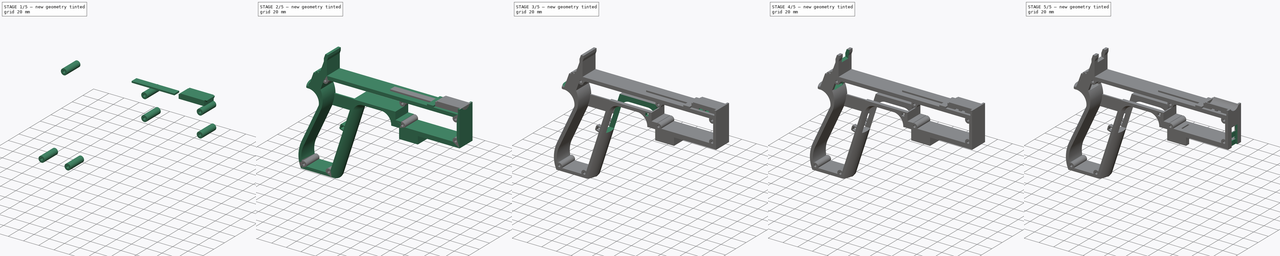
[diagram: build sequence overview — one tinted view per stage of 5, left to right]
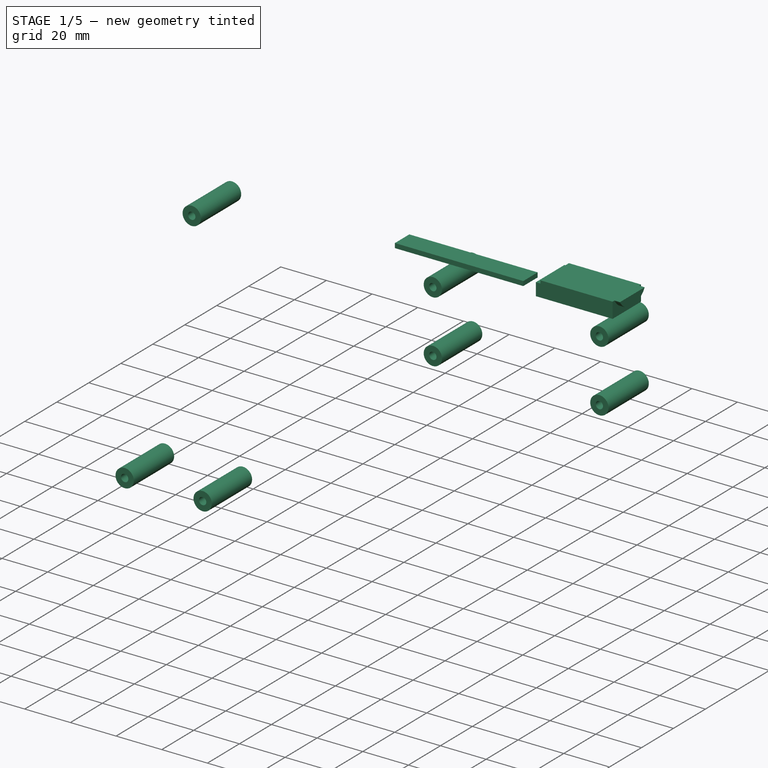
[diagram: stage 1 of 5 — iso view after this stage's code; geometry added in this stage tinted green]
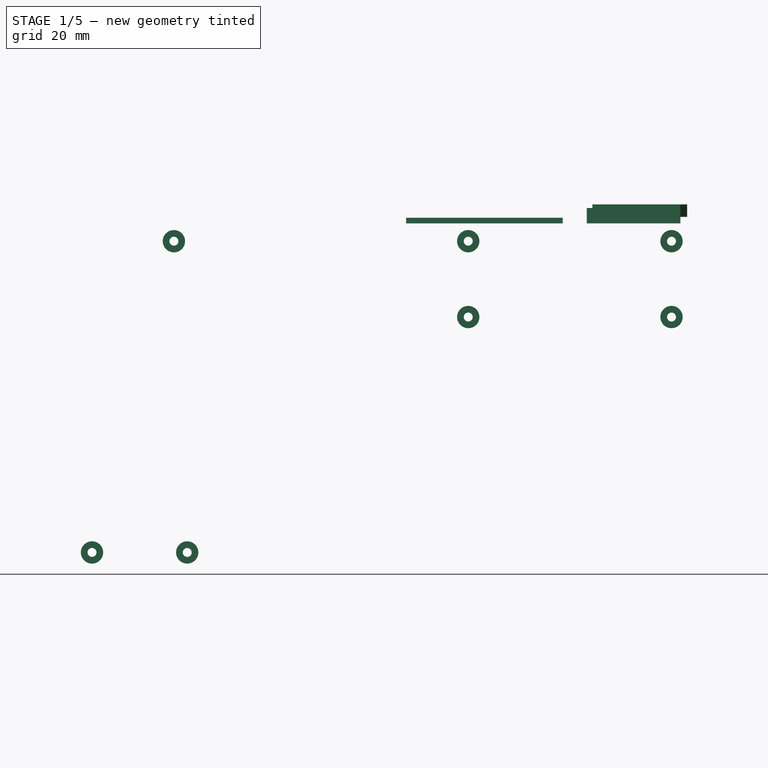
[diagram: stage 1 of 5 — front view after this stage's code; geometry added in this stage tinted green]
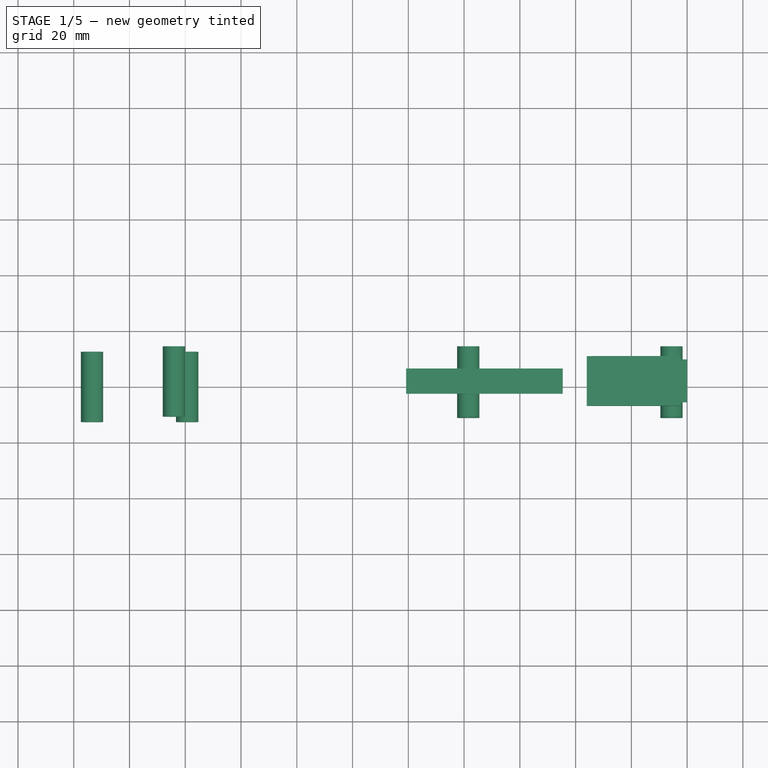
[diagram: stage 1 of 5 — top view after this stage's code; geometry added in this stage tinted green]
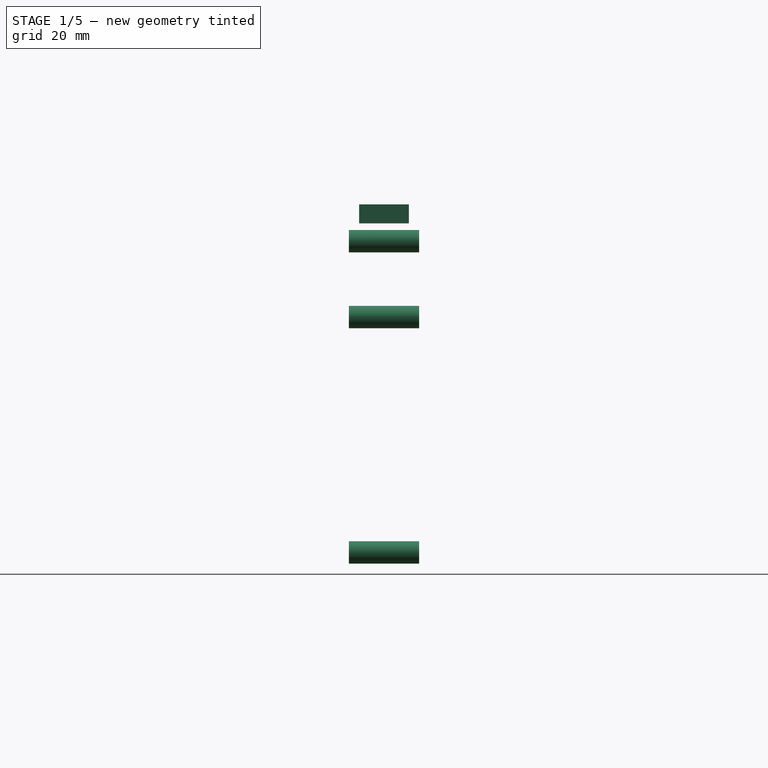
[diagram: stage 1 of 5 — right view after this stage's code; geometry added in this stage tinted green]
FCSTD DOCUMENT  (FreeCAD 1.0R39319 (Git))
Label: PICON-OF_ver_2
License: All rights reserved
LicenseURL: https://en.wikipedia.org/wiki/All_rights_reserved
objects: Sketcher::SketchObject×15, Part::Extrusion×13, Part::Cut×7, PartDesign::Plane×2, Part::Sweep×1, PartDesign::ShapeBinder×1, Part::MultiFuse×1, PartDesign::Body×1
note: 56 computed .brp shape members not serialized (recipe doc carries the construction recipe); baked Part::Feature solids carry a one-line shape summary decoded from their .brp

FEATURE [Sketcher::SketchObject] Sketch015  label="guida rail"
  ArcFitTolerance = 1e-06
  AttachmentSupport = -> [XZ_Plane]
  ExternalGeometry = -> [Sketch]
  FullyConstrained = true
  MakeInternals = false
  MapMode = 5
  Placement = pos=(0,0,0) rot=(1,0,0;1.5708rad)
  sketch-geometry (4):
    g0: LineSegment StartX=-100.8 StartY=43.2 StartZ=0 EndX=-44.6 EndY=43.2 EndZ=0
    g1: LineSegment StartX=-44.6 StartY=43.2 StartZ=0 EndX=-44.6 EndY=41.2 EndZ=0
    g2: LineSegment StartX=-44.6 StartY=41.2 StartZ=0 EndX=-100.8 EndY=41.2 EndZ=0
    g3: LineSegment StartX=-100.8 StartY=41.2 StartZ=0 EndX=-100.8 EndY=43.2 EndZ=0
  constraints (9):
    c: Horizontal(g0)
    c: Coincident(g1,g0)
    c: Coincident(g2,g1)
    c: Coincident(g3,g2)
    c: Coincident(g3,g0)
    c: Vertical(g3)
    c: Coincident(g2,g-3)
    c: Coincident(g1,g-3)
    c: Coincident(g0,g-4)
FEATURE [Part::Extrusion] Extrude011  label="Extrude guida rail"
  Base = -> Sketch015
  Dir = (0,-1,2e-16)
  DirMode = 2
  FaceMakerClass = Part::FaceMakerBullseye
  FaceMakerMode = 3
  LengthFwd = 9
  LengthRev = 0
  Solid = true
  Symmetric = true
FEATURE [Sketcher::SketchObject] Sketch016  label="guide per coperture laterali"
  ArcFitTolerance = 1e-06
  AttachmentSupport = -> [XZ_Plane]
  ExternalGeometry = -> [Sketch]
  FullyConstrained = true
  MakeInternals = false
  MapMode = 5
  Placement = pos=(0,0,0) rot=(1,0,0;1.5708rad)
  sketch-geometry (14):
    g0: Circle CenterX=-5.6 CenterY=7.6 CenterZ=0 NormalX=0 NormalY=0 NormalZ=1 AngleXU=0 Radius=1.6
    g1: Circle CenterX=-5.6 CenterY=7.6 CenterZ=0 NormalX=0 NormalY=0 NormalZ=1 AngleXU=0 Radius=4
    g2: Circle CenterX=-5.6 CenterY=34.8 CenterZ=0 NormalX=0 NormalY=0 NormalZ=1 AngleXU=0 Radius=1.6
    g3: Circle CenterX=-5.6 CenterY=34.8 CenterZ=0 NormalX=0 NormalY=0 NormalZ=1 AngleXU=0 Radius=4
    g4: Circle CenterX=-184.08 CenterY=34.8 CenterZ=0 NormalX=0 NormalY=0 NormalZ=1 AngleXU=0 Radius=1.6
    g5: Circle CenterX=-184.08 CenterY=34.8 CenterZ=0 NormalX=0 NormalY=0 NormalZ=1 AngleXU=0 Radius=4
    g6: Circle CenterX=-179.305 CenterY=-76.8316 CenterZ=0 NormalX=0 NormalY=0 NormalZ=1 AngleXU=0 Radius=1.6
    g7: Circle CenterX=-179.305 CenterY=-76.8316 CenterZ=0 NormalX=0 NormalY=0 NormalZ=1 AngleXU=0 Radius=4
    g8: Circle CenterX=-213.443 CenterY=-76.8316 CenterZ=0 NormalX=0 NormalY=0 NormalZ=1 AngleXU=0 Radius=1.6
    g9: Circle CenterX=-213.443 CenterY=-76.8316 CenterZ=0 NormalX=0 NormalY=0 NormalZ=1 AngleXU=0 Radius=4
    g10: Circle CenterX=-78.51 CenterY=7.6 CenterZ=0 NormalX=0 NormalY=0 NormalZ=1 AngleXU=0 Radius=1.6
    g11: Circle CenterX=-78.51 CenterY=7.6 CenterZ=0 NormalX=0 NormalY=0 NormalZ=1 AngleXU=0 Radius=4
    g12: Circle CenterX=-78.51 CenterY=34.8 CenterZ=0 NormalX=0 NormalY=0 NormalZ=1 AngleXU=0 Radius=1.6
    g13: Circle CenterX=-78.51 CenterY=34.8 CenterZ=0 NormalX=0 NormalY=0 NormalZ=1 AngleXU=0 Radius=4
  constraints (35):
    c: Diameter(g0) = 3.2
    c: Diameter(g1) = 8
    c: Coincident(g0,g1)
    c: Diameter(g2) = 3.2
    c: Diameter(g3) = 8
    c: Coincident(g3,g2)
    c: Tangent(g2,g-7)
    c: Diameter(g4) = 3.2
    c: Diameter(g5) = 8
    c: Coincident(g5,g4)
    c: Tangent(g4,g-7)
    c: Tangent(g4,g-8)
    c: Diameter(g6) = 3.2
    c: Diameter(g7) = 8
    c: Coincident(g7,g6)
    c: Tangent(g6,g-9)
    c: Tangent(g6,g-10)
    c: Diameter(g8) = 3.2
    c: Diameter(g9) = 8
    c: Coincident(g9,g8)
    c: Tangent(g8,g-10)
    c: Tangent(g8,g-11)
    c: Diameter(g10) = 3.2
    c: Diameter(g11) = 8
    c: Diameter(g12) = 3.2
    c: Diameter(g13) = 8
    c: Coincident(g12,g13)
    c: Coincident(g10,g11)
    c: Tangent(g12,g-7)
    c: DistanceX(g12,g10) = 0
    c: Tangent(g2,g-6)
    c: Tangent(g0,g-6)
    c: Tangent(g0,g-3)
    c: Tangent(g10,g-3)
    c: Tangent(g10,g-4)
FEATURE [Part::Extrusion] Extrude012  label="extrude guide per coperture laterali"
  Base = -> Sketch016
  Dir = (0,-1,2e-16)
  DirMode = 2
  FaceMakerClass = Part::FaceMakerBullseye
  FaceMakerMode = 3
  LengthFwd = 25.2
  LengthRev = 0
  Solid = true
  Symmetric = true
FEATURE [Sketcher::SketchObject] Sketch017  label="supporto CAM"
  ArcFitTolerance = 1e-06
  AttachmentSupport = -> [XZ_Plane]
  ExternalGeometry = -> [Sketch]
  FullyConstrained = true
  MakeInternals = false
  MapMode = 5
  Placement = pos=(0,0,0) rot=(1,0,0;1.5708rad)
  sketch-geometry (6):
    g0: LineSegment StartX=-2.4 StartY=48 StartZ=0 EndX=-2.4 EndY=41.2 EndZ=0
    g1: LineSegment StartX=-2.4 StartY=48 StartZ=0 EndX=-34 EndY=48 EndZ=0
    g2: LineSegment StartX=-34 StartY=48 StartZ=0 EndX=-34 EndY=46.72 EndZ=0
    g3: LineSegment StartX=-34 StartY=46.72 StartZ=0 EndX=-36 EndY=46.72 EndZ=0
    g4: LineSegment StartX=-36 StartY=46.72 StartZ=0 EndX=-36 EndY=41.2 EndZ=0
    g5: LineSegment StartX=-36 StartY=41.2 StartZ=0 EndX=-2.4 EndY=41.2 EndZ=0
  constraints (15):
    c: Coincident(g1,g0)
    c: Horizontal(g1)
    c: Coincident(g2,g1)
    c: Vertical(g2)
    c: Coincident(g3,g2)
    c: Horizontal(g3)
    c: Coincident(g4,g3)
    c: Coincident(g5,g4)
    c: DistanceX(g1,g0) = 31.6
    c: Coincident(g5,g0)
    c: Vertical(g4)
    c: DistanceY(g2,g1) = 1.28
    c: Coincident(g0,g-3)
    c: Coincident(g0,g-3)
    c: Coincident(g4,g-4)
FEATURE [Part::Extrusion] Extrude013  label="Extrude supporto CAM"
  Base = -> Sketch017
  Dir = (0,-1,2e-16)
  DirMode = 2
  FaceMakerClass = Part::FaceMakerBullseye
  FaceMakerMode = 3
  LengthFwd = 17.8
  LengthRev = 0
  Solid = true
  Symmetric = true
FEATURE [Sketcher::SketchObject] Sketch018  label="Scavo CAM"
  ArcFitTolerance = 1e-06
  AttachmentSupport = -> [YZ_Plane]
  ExternalGeometry = -> [Sketch]
  FullyConstrained = true
  MakeInternals = false
  MapMode = 5
  Placement = pos=(0,0,0) rot=(0.57735,0.57735,0.57735;2.0944rad)
  sketch-geometry (4):
    g0: LineSegment StartX=-7.73 StartY=48 StartZ=0 EndX=7.73 EndY=48 EndZ=0
    g1: LineSegment [constr] StartX=1.07e-14 StartY=48 StartZ=0 EndX=0 EndY=43.5155 EndZ=0
    g2: ArcOfCircle CenterX=9e-15 CenterY=52.42 CenterZ=0 NormalX=0 NormalY=0 NormalZ=1 AngleXU=0 Radius=8.90445 StartAngle=3.66102 EndAngle=5.76376
    g3: Circle [constr] CenterX=9e-15 CenterY=52.42 CenterZ=0 NormalX=0 NormalY=0 NormalZ=1 AngleXU=0 Radius=8.9
  constraints (13):
    c: Horizontal(g0)
    c: DistanceY(g-3,g0) = 0
    c: DistanceX(g0,g0) = 15.46
    c: DistanceX(g0,g-3) = 7.73
    c: DistanceX(g-3) = 0
    c: Coincident(g1,g-3)
    c: PointOnObject(g1,g-2)
    c: Coincident(g2,g0)
    c: Coincident(g2,g0)
    c: PointOnObject(g1,g2)
    c: Diameter(g3) = 17.8
    c: DistanceY(g1,g3) = 4.42
    c: Coincident(g2,g3)
FEATURE [PartDesign::Body] Body  label="Corpo"
  AllowCompound = false
  Group = -> [Sketch,Sketch002,Sketch004,DatumPlane,Sketch005,DatumPlane001,CopyCut,Sketch008,Sketch009,Sketch010,Sketch011,Sketch012,Sketch013,Sketch014,Sketch015,Sketch016,Sketch017,Sketch018]
  Origin = -> Origin
FEATURE [Part::Extrusion] Extrude014  label="Extrude Scavo CAM"
  Base = -> Sketch018
  Dir = (1,0,0)
  DirMode = 2
  FaceMakerClass = Part::FaceMakerBullseye
  FaceMakerMode = 3
  LengthFwd = -34
  LengthRev = 0
  Solid = true
  Symmetric = false
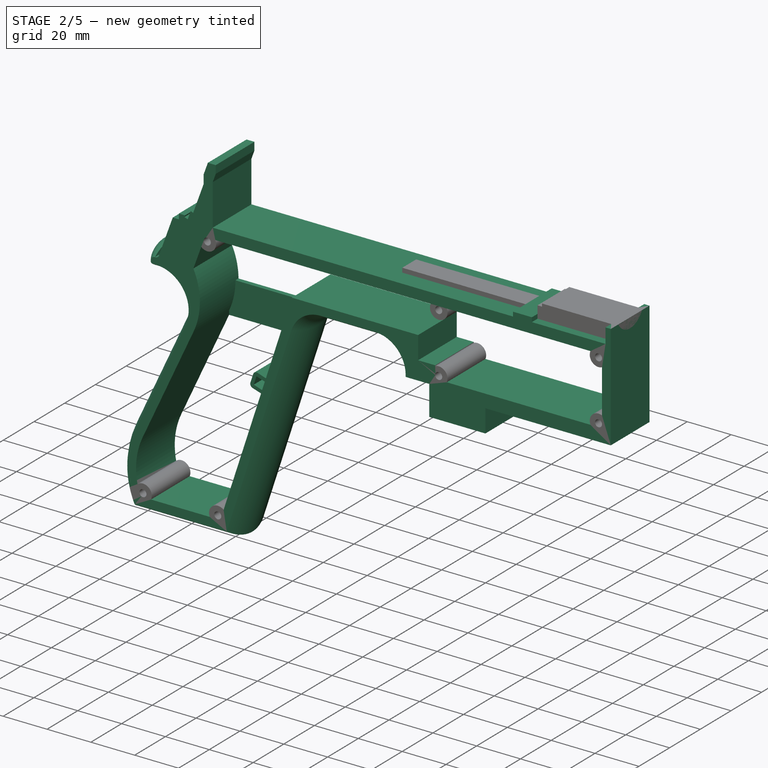
[diagram: stage 2 of 5 — iso view after this stage's code; geometry added in this stage tinted green]
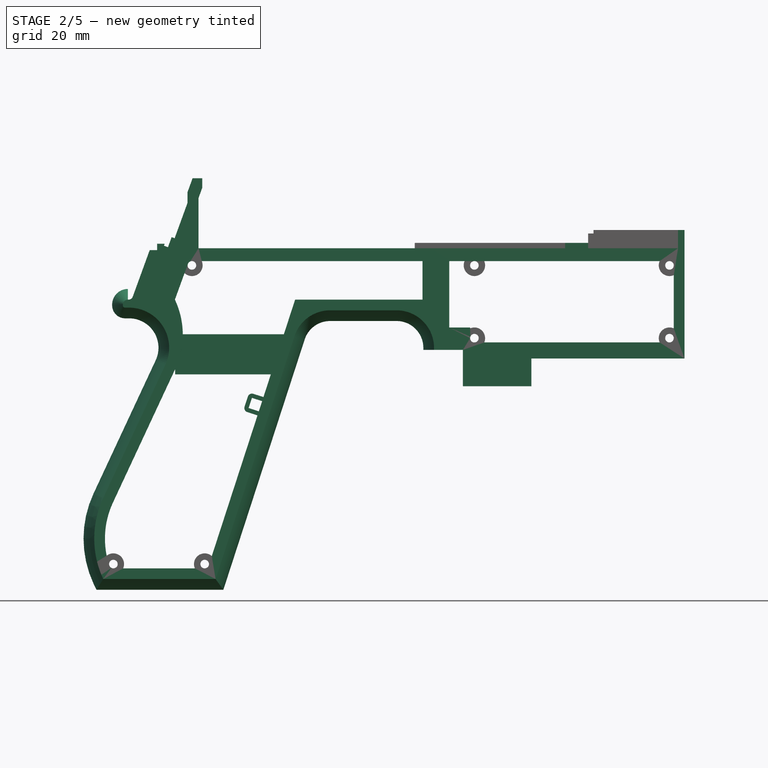
[diagram: stage 2 of 5 — front view after this stage's code; geometry added in this stage tinted green]
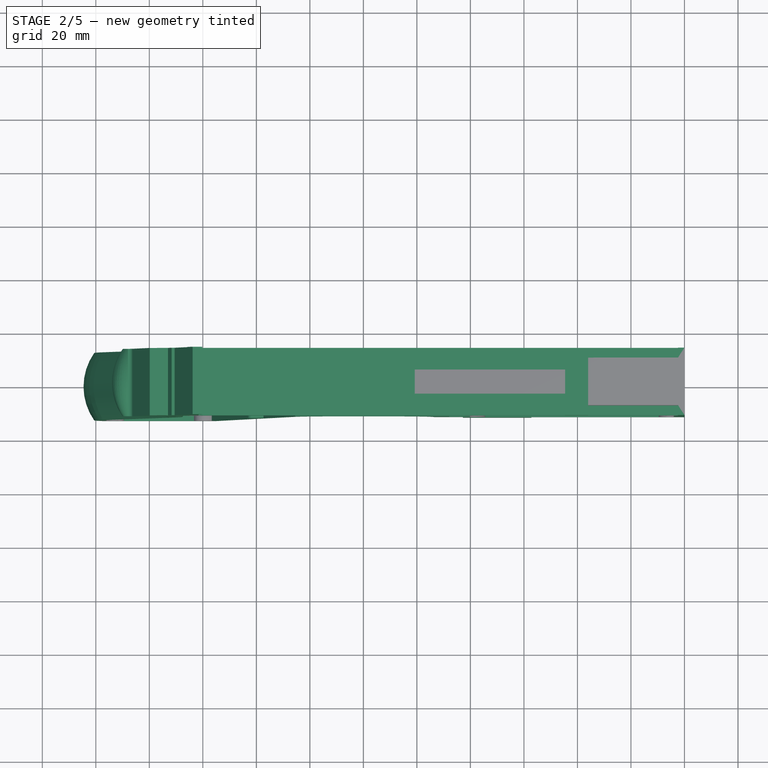
[diagram: stage 2 of 5 — top view after this stage's code; geometry added in this stage tinted green]
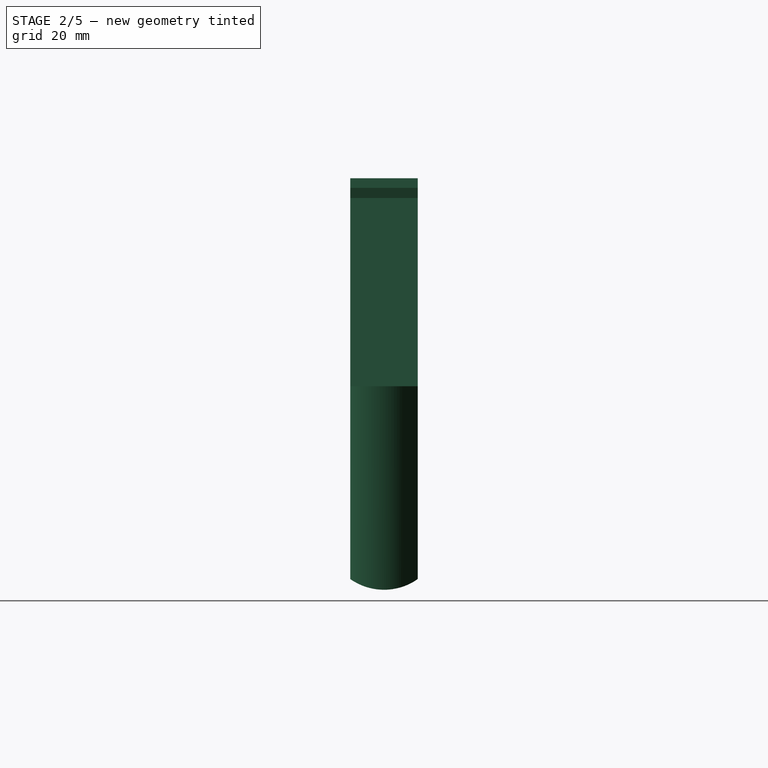
[diagram: stage 2 of 5 — right view after this stage's code; geometry added in this stage tinted green]
FEATURE [Sketcher::SketchObject] Sketch  label="corpo principale"
  ArcFitTolerance = 1e-06
  AttacherType = Attacher::AttachEngine3D
  AttachmentSupport = -> [XZ_Plane]
  FullyConstrained = true
  MakeInternals = false
  MapMode = 5
  Placement = pos=(0,0,0) rot=(1,0,0;1.5708rad)
  sketch-geometry (63):
    g0: LineSegment StartX=0 StartY=0 StartZ=0 EndX=-57.2 EndY=0 EndZ=0
    g1: LineSegment StartX=-57.2 StartY=0 StartZ=0 EndX=-57.2 EndY=-10.4 EndZ=0
    g2: LineSegment StartX=-57.2 StartY=-10.4 StartZ=0 EndX=-82.8 EndY=-10.4 EndZ=0
    g3: LineSegment StartX=-82.8 StartY=-10.4 StartZ=0 EndX=-82.8 EndY=3.2 EndZ=0
    g4: LineSegment StartX=-82.8 StartY=3.2 StartZ=0 EndX=-93.6 EndY=3.2 EndZ=0
    g5: LineSegment StartX=-93.6 StartY=3.2 StartZ=0 EndX=-93.6 EndY=4 EndZ=0
    g6: LineSegment StartX=-107.6 StartY=18 StartZ=0 EndX=-132.428 EndY=18 EndZ=0
    g7: LineSegment StartX=-145.743 StartY=8.32624 StartZ=0 EndX=-175.232 EndY=-82.4316 EndZ=0
    g8: LineSegment StartX=-175.232 StartY=-82.4316 StartZ=0 EndX=-217.232 EndY=-82.4316 EndZ=0
    g9: LineSegment StartX=-217.232 StartY=-52.1862 StartZ=0 EndX=-193.988 EndY=-2.33927 EndZ=0
    g10: LineSegment StartX=-206.196 StartY=23.0857 StartZ=0 EndX=-199.861 EndY=40.4914 EndZ=0
    g11: LineSegment StartX=-199.861 StartY=40.4914 StartZ=0 EndX=-197.061 EndY=40.4914 EndZ=0
    g12: LineSegment StartX=-197.061 StartY=40.4914 StartZ=0 EndX=-197.061 EndY=42.8914 EndZ=0
    g13: LineSegment StartX=-197.061 StartY=42.8914 StartZ=0 EndX=-194.261 EndY=42.8914 EndZ=0
    g14: LineSegment StartX=-194.261 StartY=42.8914 StartZ=0 EndX=-194.535 EndY=42.1397 EndZ=0
    g15: LineSegment StartX=-194.535 StartY=42.1397 StartZ=0 EndX=-193.031 EndY=41.5924 EndZ=0
    g16: LineSegment StartX=-193.031 StartY=41.5924 StartZ=0 EndX=-191.663 EndY=45.3512 EndZ=0
    g17: LineSegment StartX=-191.663 StartY=45.3512 StartZ=0 EndX=-190.536 EndY=44.9408 EndZ=0
    g18: LineSegment StartX=-190.536 StartY=44.9408 StartZ=0 EndX=-185.747 EndY=58.0965 EndZ=0
    g19: LineSegment StartX=-185.747 StartY=58.0965 StartZ=0 EndX=-185.747 EndY=62.0965 EndZ=0
    g20: LineSegment StartX=-185.747 StartY=62.0965 StartZ=0 EndX=-183.832 EndY=67.3588 EndZ=0
    g21: LineSegment StartX=-183.832 StartY=67.3588 StartZ=0 EndX=-180.232 EndY=67.3588 EndZ=0
    g22: LineSegment StartX=-180.232 StartY=67.3588 StartZ=0 EndX=-180.232 EndY=63.7588 EndZ=0
    g23: LineSegment StartX=-180.232 StartY=63.7588 StartZ=0 EndX=-181.6 EndY=60 EndZ=0
    g24: LineSegment StartX=-181.6 StartY=60 StartZ=0 EndX=-181.6 EndY=41.2 EndZ=0
    g25: LineSegment StartX=-181.6 StartY=41.2 StartZ=0 EndX=-100.8 EndY=41.2 EndZ=0
    g26: LineSegment StartX=-36 StartY=43.2 StartZ=0 EndX=-36 EndY=41.2 EndZ=0
    g27: LineSegment StartX=0 StartY=48 StartZ=0 EndX=0 EndY=0 EndZ=0
    g28: LineSegment StartX=-209.901 StartY=19.85 StartZ=0 EndX=-209.901 EndY=20.1 EndZ=0
    g29: LineSegment StartX=-208.001 StartY=22 StartZ=0 EndX=-207.747 EndY=22 EndZ=0
    g30: LineSegment StartX=-207.583 StartY=19 StartZ=0 EndX=-209.051 EndY=19 EndZ=0
    g31: ArcOfCircle CenterX=-208.001 CenterY=20.1 CenterZ=0 NormalX=0 NormalY=0 NormalZ=1 AngleXU=0 Radius=1.9 StartAngle=1.5708 EndAngle=3.14159
    g32: GeomPoint [constr] X=-209.901 Y=22 Z=0
    g33: ArcOfCircle CenterX=-209.051 CenterY=19.85 CenterZ=0 NormalX=0 NormalY=0 NormalZ=1 AngleXU=0 Radius=0.85 StartAngle=3.14159 EndAngle=4.71239
    g34: GeomPoint [constr] X=-209.901 Y=19 Z=0
    g35: ArcOfCircle CenterX=-207.747 CenterY=23.65 CenterZ=0 NormalX=0 NormalY=0 NormalZ=1 AngleXU=0 Radius=1.65 StartAngle=4.71239 EndAngle=5.93412
    g36: GeomPoint [constr] X=-206.591 Y=22 Z=0
    g37: LineSegment StartX=-4 StartY=6 StartZ=0 EndX=-4 EndY=36.4 EndZ=0
    g38: LineSegment StartX=-4 StartY=36.4 StartZ=0 EndX=-185.2 EndY=36.4 EndZ=0
    g39: LineSegment StartX=-185.2 StartY=36.4 StartZ=0 EndX=-190.441 EndY=22 EndZ=0
    g40: LineSegment StartX=-214.575 StartY=-78.4316 StartZ=0 EndX=-178.142 EndY=-78.4316 EndZ=0
    g41: LineSegment StartX=-178.142 StartY=-78.4316 StartZ=0 EndX=-145.51 EndY=22 EndZ=0
    g42: LineSegment StartX=-145.51 StartY=22 StartZ=0 EndX=-87.91 EndY=22 EndZ=0
    g43: LineSegment StartX=-87.91 StartY=22 StartZ=0 EndX=-87.91 EndY=11.6 EndZ=0
    g44: LineSegment StartX=-87.91 StartY=11.6 StartZ=0 EndX=-80.11 EndY=11.6 EndZ=0
    g45: LineSegment StartX=-80.11 StartY=11.6 StartZ=0 EndX=-80.11 EndY=6 EndZ=0
    g46: LineSegment StartX=-80.11 StartY=6 StartZ=0 EndX=-4 EndY=6 EndZ=0
    g47: LineSegment StartX=-190.363 StartY=-4.02975 StartZ=0 EndX=-213.607 EndY=-53.8767 EndZ=0
    g48: ArcOfCircle CenterX=-132.428 CenterY=4 CenterZ=0 NormalX=0 NormalY=0 NormalZ=1 AngleXU=0 Radius=14 StartAngle=1.5708 EndAngle=2.82743
    g49: GeomPoint [constr] X=-142.6 Y=18 Z=0
    g50: ArcOfCircle CenterX=-107.6 CenterY=4 CenterZ=0 NormalX=0 NormalY=0 NormalZ=1 AngleXU=0 Radius=14 StartAngle=0 EndAngle=1.5708
    g51: GeomPoint [constr] X=-93.6 Y=18 Z=0
    g52: ArcOfCircle CenterX=-184.801 CenterY=-67.3089 CenterZ=0 NormalX=0 NormalY=0 NormalZ=1 AngleXU=0 Radius=35.7833 StartAngle=2.70526 EndAngle=3.57792
    g53: ArcOfCircle CenterX=-207.583 CenterY=4 CenterZ=0 NormalX=0 NormalY=0 NormalZ=1 AngleXU=0 Radius=15 StartAngle=5.84685 EndAngle=7.85398
    g54: LineSegment [constr] StartX=-213.607 StartY=-53.8767 StartZ=0 EndX=-217.232 EndY=-52.1862 EndZ=0
    g55: ArcOfCircle CenterX=-184.801 CenterY=-67.3089 CenterZ=0 NormalX=0 NormalY=0 NormalZ=1 AngleXU=0 Radius=31.7833 StartAngle=2.70526 EndAngle=3.49911
    g56: ArcOfCircle CenterX=-218.095 CenterY=8.90192 CenterZ=0 NormalX=0 NormalY=0 NormalZ=1 AngleXU=0 Radius=30.5989 StartAngle=5.84685 EndAngle=6.72553
    g57: LineSegment StartX=-44.6 StartY=43.2 StartZ=0 EndX=-36 EndY=43.2 EndZ=0
    g58: LineSegment StartX=-100.8 StartY=41.2 StartZ=0 EndX=-44.6 EndY=41.2 EndZ=0
    g59: LineSegment StartX=-44.6 StartY=41.2 StartZ=0 EndX=-44.6 EndY=43.2 EndZ=0
    g60: LineSegment StartX=-2.4 StartY=48 StartZ=0 EndX=0 EndY=48 EndZ=0
    g61: LineSegment StartX=-36 StartY=41.2 StartZ=0 EndX=-2.4 EndY=41.2 EndZ=0
    g62: LineSegment StartX=-2.4 StartY=41.2 StartZ=0 EndX=-2.4 EndY=48 EndZ=0
  constraints (175):
    c: Coincident(g-1,g0)
    c: PointOnObject(g0,g-1)
    c: Coincident(g0,g1)
    c: Vertical(g1)
    c: Coincident(g1,g2)
    c: Horizontal(g2)
    c: Coincident(g2,g3)
    c: Vertical(g3)
    c: Coincident(g3,g4)
    c: Coincident(g4,g5)
    c: Vertical(g5)
    c: Horizontal(g6)
    c: Coincident(g7,g8)
    c: Horizontal(g8)
    c: Coincident(g10,g11)
    c: Horizontal(g11)
    c: Coincident(g11,g12)
    c: Vertical(g12)
    c: Coincident(g12,g13)
    c: Horizontal(g13)
    c: Coincident(g13,g14)
    c: Coincident(g14,g15)
    c: Coincident(g15,g16)
    c: Coincident(g16,g17)
    c: Coincident(g17,g18)
    c: Coincident(g18,g19)
    c: Vertical(g19)
    c: Coincident(g19,g20)
    c: Coincident(g20,g21)
    c: Horizontal(g21)
    c: Coincident(g21,g22)
    c: Vertical(g22)
    c: Coincident(g22,g23)
    c: Coincident(g23,g24)
    c: Vertical(g24)
    c: Coincident(g24,g25)
    c: Horizontal(g25)
    c: Coincident(g57,g26)
    c: Vertical(g26)
    c: Coincident(g26,g61)
    c: PointOnObject(g60,g-2)
    c: Coincident(g60,g27)
    c: Coincident(g27,g0)
    c: DistanceY(g27,g27) = 48
    c: DistanceY(g1,g1) = 10.4
    c: DistanceX(g0,g0) = 57.2
    c: DistanceX(g2,g2) = 25.6
    c: Horizontal(g4)
    c: DistanceY(g3,g3) = 13.6
    c: DistanceX(g4,g4) = 10.8
    c: DistanceY(g5,g51) = 14.8
    c: DistanceX(g49,g51) = 49
    c: Distance(g7,g49) = 105.6
    c: DistanceX(g61,g60) = 36
    c: DistanceX(g25,g25) = 80.8
    c: DistanceY(g24,g24) = 18.8
    c: DistanceY(g22,g22) = 3.6
    c: Distance(g23) = 4
    c: Angle(g-1,g23) = 1.22173
    c: DistanceX(g21,g21) = 3.6
    c: Distance(g20) = 5.6
    c: Angle(g-1,g20) = 1.22173
    c: DistanceY(g19,g19) = 4
    c: Distance(g18) = 14
    c: Angle(g-1,g18) = 1.22173
    c: Distance(g17) = 1.2
    c: Distance(g16) = 4
    c: Angle(g16) = 1.22173
    c: Perpendicular(g18,g17)
    c: Distance(g15) = 1.6
    c: Perpendicular(g16,g15)
    c: Distance(g14) = 0.8
    c: DistanceX(g13,g13) = 2.8
    c: Perpendicular(g15,g14)
    c: DistanceY(g12,g12) = 2.4
    c: DistanceX(g11,g11) = 2.8
    c: Distance(g9) = 55
    c: Angle(g9,g-1) = 2.00713
    c: Horizontal(g29)
    c: Vertical(g28)
    c: Horizontal(g30)
    c: PointOnObject(g32,g29)
    c: PointOnObject(g32,g28)
    c: Tangent(g29,g31) = 1.5708
    c: Tangent(g28,g31) = 1.5708
    c: PointOnObject(g34,g28)
    c: PointOnObject(g34,g30)
    c: Tangent(g28,g33) = 1.5708
    c: Tangent(g30,g33) = 1.5708
    c: PointOnObject(g36,g29)
    c: PointOnObject(g36,g10)
    c: Tangent(g29,g35) = -1.5708
    c: Tangent(g10,g35) = -1.5708
    c: Angle(g-1,g10) = 1.22173
    c: Radius(g35) = 1.65
    c: Vertical(g37)
    c: Coincident(g37,g38)
    c: Horizontal(g38)
    c: Coincident(g38,g39)
    c: Horizontal(g40)
    c: Coincident(g40,g41)
    c: Coincident(g41,g42)
    c: Horizontal(g42)
    c: Coincident(g42,g43)
    c: Vertical(g43)
    c: Coincident(g43,g44)
    c: Horizontal(g44)
    c: Coincident(g44,g45)
    c: Vertical(g45)
    c: Coincident(g45,g46)
    c: Coincident(g46,g37)
    c: Horizontal(g46)
    c: DistanceY(g0,g37) = 6
    c: DistanceX(g37,g0) = 4
    c: DistanceY(g37,g25) = 4.8
    c: DistanceX(g38,g38) = 181.2
    c: DistanceX(g42,g42) = 57.6
    c: DistanceY(g49,g41) = 4
    c: DistanceX(g41,g49) = 2.91
    c: DistanceY(g43,g43) = 10.4
    c: DistanceX(g44,g44) = 7.8
    c: DistanceY(g7,g40) = 4
    c: Distance(g47) = 55
    c: Angle(g-1,g39) = 1.22173
    c: PointOnObject(g49,g7)
    c: PointOnObject(g49,g6)
    c: Tangent(g7,g48) = -1.5708
    c: Tangent(g6,g48) = -1.5708
    c: PointOnObject(g51,g5)
    c: PointOnObject(g51,g6)
    c: Tangent(g5,g50) = -1.5708
    c: Tangent(g6,g50) = -1.5708
    c: Radius(g50) = 14
    c: Radius(g48) = 14
    c: DistanceX(g8,g8) = 42
    c: Angle(g7,g-1) = 1.88496
    c: Parallel(g41,g7)
    c: Parallel(g47,g9)
    c: Coincident(g52,g8)
    c: Tangent(g52,g9) = 1.5708
    c: DistanceX(g9,g8) = 0
    c: Tangent(g53,g9) = -1.5708
    c: Tangent(g53,g30) = -1.5708
    c: Diameter(g53) = 30
    c: DistanceY(g53,g0) = -4
    c: Coincident(g54,g47)
    c: Distance(g54) = 4
    c: Coincident(g54,g9)
    c: Coincident(g55,g40)
    c: Tangent(g55,g47) = -1.5708
    c: Coincident(g52,g55)
    c: Coincident(g56,g39)
    c: Tangent(g56,g47) = 1.5708
    c: Horizontal(g57)
    c: DistanceX(g57,g57) = 8.6
    c: Coincident(g58,g25)
    c: Horizontal(g58)
    c: Coincident(g59,g58)
    c: Vertical(g59)
    c: DistanceY(g58,g57) = 2
    c: DistanceX(g58,g58) = 56.2
    c: Coincident(g59,g57)
    c: DistanceY(g41,g36) = 0
    c: DistanceY(g36,g39) = 0
    c: DistanceY(g28,g28) = 0.25
    c: DistanceX(g30,g36) = 2.46
    c: DistanceX(g28,g29) = 1.9
    c: Coincident(g62,g60)
    c: Horizontal(g60)
    c: DistanceX(g62,g27) = 2.4
    c: Coincident(g61,g62)
    c: DistanceY(g26,g26) = 2
    c: Vertical(g62)
    c: DistanceY(g61,g60) = 6.8
    c: Horizontal(g61)
FEATURE [Part::Extrusion] Extrude  label="Extrude corpo principale"
  Base = -> Sketch
  Dir = (0,-1,2e-16)
  DirMode = 2
  FaceMakerClass = Part::FaceMakerBullseye
  FaceMakerMode = 3
  LengthFwd = 25.2
  LengthRev = 12.6
  Solid = true
  Symmetric = true
FEATURE [Sketcher::SketchObject] Sketch002  label="scavo grilletto"
  ArcFitTolerance = 1e-06
  AttachmentSupport = -> [XZ_Plane]
  ExternalGeometry = -> [Sketch]
  FullyConstrained = true
  MakeInternals = false
  MapMode = 5
  Placement = pos=(0,0,0) rot=(1,0,0;1.5708rad)
  sketch-geometry (4):
    g0: LineSegment StartX=-89.51 StartY=22 StartZ=0 EndX=-152.71 EndY=22 EndZ=0
    g1: LineSegment StartX=-152.71 StartY=22 StartZ=0 EndX=-167.006 EndY=-22 EndZ=0
    g2: LineSegment StartX=-167.006 StartY=-22 StartZ=0 EndX=-89.51 EndY=-22 EndZ=0
    g3: LineSegment StartX=-89.51 StartY=-22 StartZ=0 EndX=-89.51 EndY=22 EndZ=0
  constraints (12):
    c: Horizontal(g0)
    c: Coincident(g0,g1)
    c: Coincident(g1,g2)
    c: Horizontal(g2)
    c: Coincident(g2,g3)
    c: Coincident(g3,g0)
    c: Vertical(g3)
    c: Angle(g1,g0) = 1.88496
    c: DistanceY(g3,g3) = 44
    c: DistanceX(g0,g0) = 63.2
    c: DistanceX(g0,g-3) = 1.6
    c: DistanceY(g-3,g0) = 0
FEATURE [Sketcher::SketchObject] Sketch004  label="traiettoria arrotondamento impugnatura anteriore"
  ArcFitTolerance = 1e-06
  AttachmentSupport = -> [XZ_Plane]
  ExternalGeometry = -> [Sketch]
  FullyConstrained = true
  MakeInternals = false
  MapMode = 5
  Placement = pos=(0,0,0) rot=(1,0,0;1.5708rad)
  sketch-geometry (13):
    g0: LineSegment StartX=-175.232 StartY=-82.4316 StartZ=0 EndX=-145.743 EndY=8.32624 EndZ=0
    g1: LineSegment StartX=-93.6 StartY=3.2 StartZ=0 EndX=-93.6 EndY=4 EndZ=0
    g2: LineSegment StartX=-132.428 StartY=18 StartZ=0 EndX=-107.6 EndY=18 EndZ=0
    g3: ArcOfCircle CenterX=-132.428 CenterY=4 CenterZ=0 NormalX=0 NormalY=0 NormalZ=1 AngleXU=0 Radius=14 StartAngle=1.5708 EndAngle=2.82743
    g4: ArcOfCircle CenterX=-107.6 CenterY=4 CenterZ=0 NormalX=0 NormalY=0 NormalZ=1 AngleXU=0 Radius=14 StartAngle=0 EndAngle=1.5708
    g5: LineSegment StartX=-175.232 StartY=-82.4316 StartZ=0 EndX=-217.232 EndY=-82.4316 EndZ=0
    g6: LineSegment StartX=-217.232 StartY=-52.1862 StartZ=0 EndX=-193.988 EndY=-2.33927 EndZ=0
    g7: LineSegment StartX=-209.051 StartY=19 StartZ=0 EndX=-207.583 EndY=19 EndZ=0
    g8: LineSegment StartX=-209.901 StartY=20.1 StartZ=0 EndX=-209.901 EndY=19.85 EndZ=0
    g9: ArcOfCircle CenterX=-184.801 CenterY=-67.3089 CenterZ=0 NormalX=0 NormalY=0 NormalZ=1 AngleXU=0 Radius=35.7833 StartAngle=2.70526 EndAngle=3.57792
    g10: ArcOfCircle CenterX=-207.583 CenterY=4 CenterZ=0 NormalX=0 NormalY=0 NormalZ=1 AngleXU=0 Radius=15 StartAngle=5.84685 EndAngle=7.85398
    g11: ArcOfCircle CenterX=-209.051 CenterY=19.85 CenterZ=0 NormalX=0 NormalY=0 NormalZ=1 AngleXU=0 Radius=0.85 StartAngle=3.14159 EndAngle=4.71239
    g12: ArcOfCircle CenterX=-208.001 CenterY=20.1 CenterZ=0 NormalX=0 NormalY=0 NormalZ=1 AngleXU=0 Radius=1.9 StartAngle=1.5708 EndAngle=3.14159
  constraints (26):
    c: Coincident(g0,g-3)
    c: Coincident(g0,g-6)
    c: Coincident(g1,g-8)
    c: Coincident(g1,g-7)
    c: Coincident(g2,g-5)
    c: Coincident(g2,g-4)
    c: Coincident(g3,g2)
    c: Tangent(g3,g0) = 1.5708
    c: Coincident(g4,g1)
    c: Tangent(g4,g2) = 1.5708
    c: Coincident(g5,g0)
    c: Coincident(g5,g-9)
    c: Coincident(g6,g-12)
    c: Coincident(g6,g-11)
    c: Coincident(g7,g-15)
    c: Coincident(g7,g-14)
    c: Coincident(g8,g-16)
    c: Coincident(g8,g-17)
    c: Tangent(g9,g6) = 1.5708
    c: Coincident(g9,g5)
    c: Coincident(g10,g7)
    c: Tangent(g10,g6) = -1.5708
    c: Tangent(g11,g7) = -1.5708
    c: Coincident(g11,g8)
    c: Tangent(g12,g8) = -1.5708
    c: Coincident(g12,g-17)
FEATURE [PartDesign::Plane] DatumPlane  label="Piano per disegno arrotondamento impugnatura"
  AttachmentSupport = -> [Sketch]
  Length = 73.6581
  MapMode = 7
  Placement = pos=(-145.743,1.8e-15,8.32624) rot=(0.154555,0.154555,0.97582;1.59527rad)
  ResizeMode = 0
  Width = 303.511
FEATURE [Sketcher::SketchObject] Sketch005  label="forma arrotondamento impugnatura anteriore"
  ArcFitTolerance = 1e-06
  AttachmentSupport = -> [DatumPlane]
  FullyConstrained = true
  MakeInternals = false
  MapMode = 5
  Placement = pos=(-145.743,1.8e-15,8.32624) rot=(0.154555,0.154555,0.97582;1.59527rad)
  sketch-geometry (5):
    g0: GeomPoint [constr] X=0 Y=-4 Z=0
    g1: GeomPoint [constr] X=-12.6 Y=7.1e-15 Z=0
    g2: GeomPoint [constr] X=12.6 Y=4.97e-14 Z=0
    g3: LineSegment StartX=-12.6 StartY=7.1e-15 StartZ=0 EndX=12.6 EndY=4.97e-14 EndZ=0
    g4: ArcOfCircle CenterX=-3.88e-14 CenterY=17.845 CenterZ=0 NormalX=0 NormalY=0 NormalZ=1 AngleXU=0 Radius=21.845 StartAngle=4.09759 EndAngle=5.32718
  constraints (11):
    c: DistanceY(g0,g-1) = 4
    c: DistanceX(g-1,g0) = 0
    c: DistanceX(g1,g-1) = 12.6
    c: DistanceX(g-1,g2) = 12.6
    c: DistanceY(g-1,g2) = 0
    c: DistanceY(g-1,g1) = 0
    c: Coincident(g3,g1)
    c: Coincident(g3,g2)
    c: Coincident(g4,g1)
    c: Coincident(g4,g2)
    c: PointOnObject(g0,g4)
FEATURE [Part::Sweep] Sweep  label="Sweep impugnatura"
  Frenet = true
  Sections = -> [Sketch005]
  Solid = true
  Spine = -> Sketch [Edge32,Edge33,Edge34,Edge35,Edge36,Edge37,Edge38,Edge39,Edge40,Edge41,Edge42,Edge43,Edge44]
  Transition = 1
FEATURE [Part::Extrusion] Extrude005  label="Extrude Rinforzi"
  Base = -> Sketch009
  Dir = (0,-1,2e-16)
  DirMode = 2
  FaceMakerClass = Part::FaceMakerBullseye
  FaceMakerMode = 3
  LengthFwd = 2
  LengthRev = 0
  Placement = pos=(0,12.6,0) rot=(0,0,1;0rad)
  Solid = true
  Symmetric = false
FEATURE [Sketcher::SketchObject] Sketch011  label="fermo grilletto"
  ArcFitTolerance = 1e-06
  AttachmentSupport = -> [XZ_Plane]
  ExternalGeometry = -> [Sketch]
  FullyConstrained = true
  MakeInternals = false
  MapMode = 5
  Placement = pos=(0,0,0) rot=(1,0,0;1.5708rad)
  sketch-geometry (18):
    g0: LineSegment [constr] StartX=-145.51 StartY=22 StartZ=0 EndX=-157.347 EndY=-14.4293 EndZ=0
    g1: LineSegment [constr] StartX=-157.347 StartY=-14.4293 StartZ=0 EndX=-157.841 EndY=-15.951 EndZ=0
    g2: LineSegment StartX=-161.151 StartY=-13.1932 StartZ=0 EndX=-155.825 EndY=-14.9237 EndZ=0
    g3: LineSegment StartX=-163.167 StartY=-14.2205 StartZ=0 EndX=-164.403 EndY=-18.0247 EndZ=0
    g4: LineSegment StartX=-163.376 StartY=-20.0408 StartZ=0 EndX=-158.05 EndY=-21.7713 EndZ=0
    g5: LineSegment StartX=-158.05 StartY=-21.7713 StartZ=0 EndX=-155.825 EndY=-14.9237 EndZ=0
    g6: LineSegment StartX=-161.645 StartY=-14.7149 StartZ=0 EndX=-157.841 EndY=-15.951 EndZ=0
    g7: LineSegment StartX=-157.841 StartY=-15.951 StartZ=0 EndX=-159.077 EndY=-19.7552 EndZ=0
    g8: LineSegment StartX=-159.077 StartY=-19.7552 StartZ=0 EndX=-162.881 EndY=-18.5191 EndZ=0
    g9: LineSegment StartX=-162.881 StartY=-18.5191 StartZ=0 EndX=-161.645 EndY=-14.7149 EndZ=0
    g10: LineSegment [constr] StartX=-161.645 StartY=-14.7149 StartZ=0 EndX=-161.151 EndY=-13.1932 EndZ=0
    g11: LineSegment [constr] StartX=-159.077 StartY=-19.7552 StartZ=0 EndX=-157.555 EndY=-20.2496 EndZ=0
    g12: LineSegment [constr] StartX=-159.077 StartY=-19.7552 StartZ=0 EndX=-159.572 EndY=-21.2769 EndZ=0
    g13: LineSegment [constr] StartX=-161.645 StartY=-14.7149 StartZ=0 EndX=-163.167 EndY=-14.2205 EndZ=0
    g14: ArcOfCircle CenterX=-161.645 CenterY=-14.7149 CenterZ=0 NormalX=0 NormalY=0 NormalZ=1 AngleXU=0 Radius=1.6 StartAngle=1.25664 EndAngle=2.82743
    g15: GeomPoint [constr] X=-162.673 Y=-12.6988 Z=0
    g16: ArcOfCircle CenterX=-162.881 CenterY=-18.5191 CenterZ=0 NormalX=0 NormalY=0 NormalZ=1 AngleXU=0 Radius=1.6 StartAngle=2.82743 EndAngle=4.39823
    g17: GeomPoint [constr] X=-164.897 Y=-19.5464 Z=0
  constraints (48):
    c: Parallel(g0,g-3)
    c: Distance(g0) = 38.304
    c: Coincident(g0,g-3)
    c: Parallel(g1,g-3)
    c: Distance(g1) = 1.6
    c: Coincident(g1,g0)
    c: Coincident(g5,g4)
    c: Coincident(g5,g2)
    c: Coincident(g7,g6)
    c: Coincident(g8,g7)
    c: Coincident(g9,g8)
    c: Coincident(g9,g6)
    c: Parallel(g7,g-3)
    c: Parallel(g9,g7)
    c: Perpendicular(g6,g7)
    c: Parallel(g6,g8)
    c: Distance(g6) = 4
    c: Distance(g9) = 4
    c: Parallel(g5,g7)
    c: Parallel(g9,g3)
    c: Parallel(g2,g6)
    c: Parallel(g4,g8)
    c: Parallel(g13,g6)
    c: Parallel(g10,g9)
    c: Parallel(g11,g8)
    c: Parallel(g12,g7)
    c: Distance(g10) = 1.6
    c: Distance(g13) = 1.6
    c: Distance(g12) = 1.6
    c: Distance(g11) = 1.6
    c: Coincident(g10,g6)
    c: Coincident(g13,g6)
    c: Coincident(g12,g7)
    c: Coincident(g11,g7)
    c: Distance(g10,g15) = 1.6
    c: Distance(g15,g13) = 1.6
    c: Distance(g4,g12) = 1.6
    c: Distance(g4,g11) = 1.6
    c: PointOnObject(g15,g2)
    c: Tangent(g3,g14) = -1.5708
    c: Tangent(g2,g14) = 1.5708
    c: PointOnObject(g17,g4)
    c: PointOnObject(g17,g3)
    c: Tangent(g4,g16) = -1.5708
    c: Tangent(g3,g16) = -1.5708
    c: Equal(g16,g14)
    c: Coincident(g16,g8)
    c: Coincident(g6,g1)
FEATURE [Part::Extrusion] Extrude007  label="Extrude fermo grilletto"
  Base = -> Sketch011
  Dir = (0,-1,2e-16)
  DirMode = 2
  FaceMakerClass = Part::FaceMakerBullseye
  FaceMakerMode = 3
  LengthFwd = 25.2
  LengthRev = 0
  Solid = true
  Symmetric = true
FEATURE [Part::MultiFuse] Fusion
  Refine = true
  Shapes = -> [Extrude,Sweep,Extrude007,Extrude011,Extrude005,Extrude012,Extrude013]
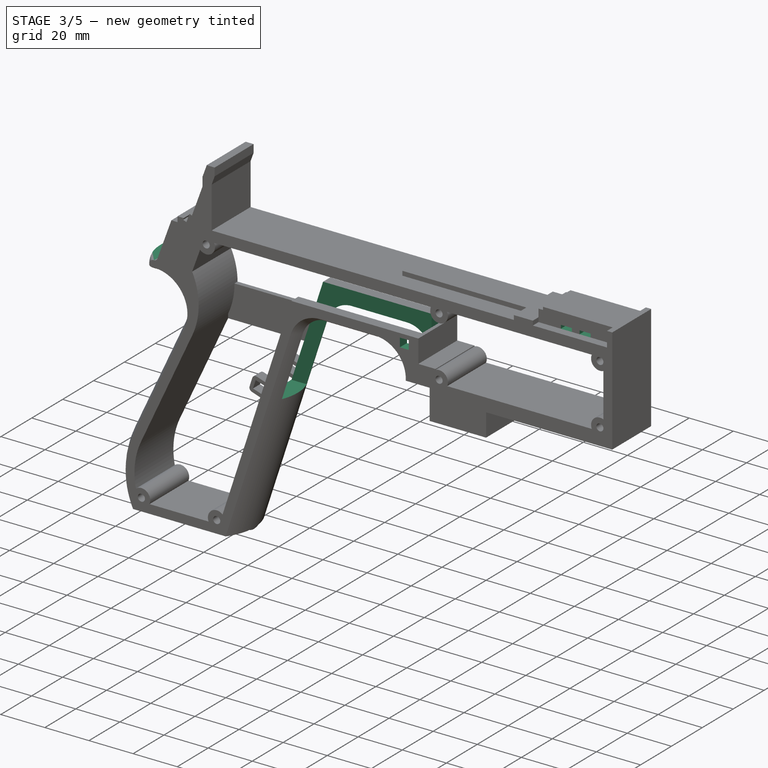
[diagram: stage 3 of 5 — iso view after this stage's code; geometry added in this stage tinted green]
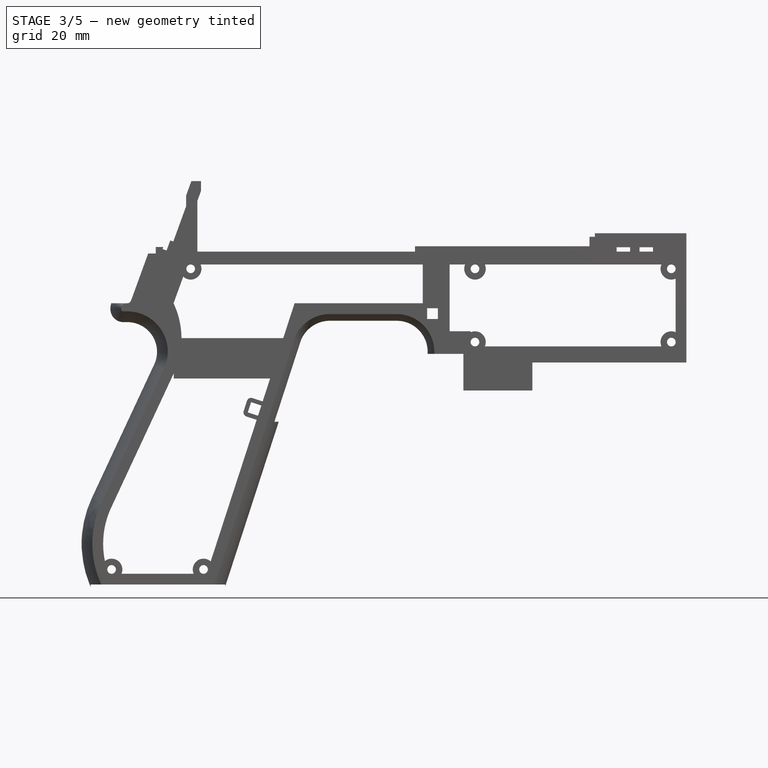
[diagram: stage 3 of 5 — front view after this stage's code; geometry added in this stage tinted green]
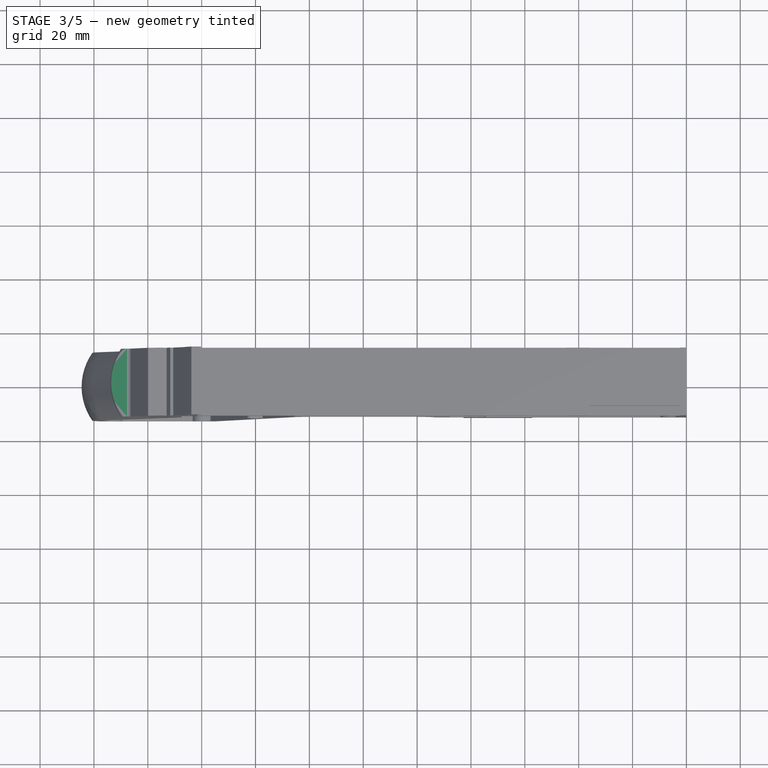
[diagram: stage 3 of 5 — top view after this stage's code; geometry added in this stage tinted green]
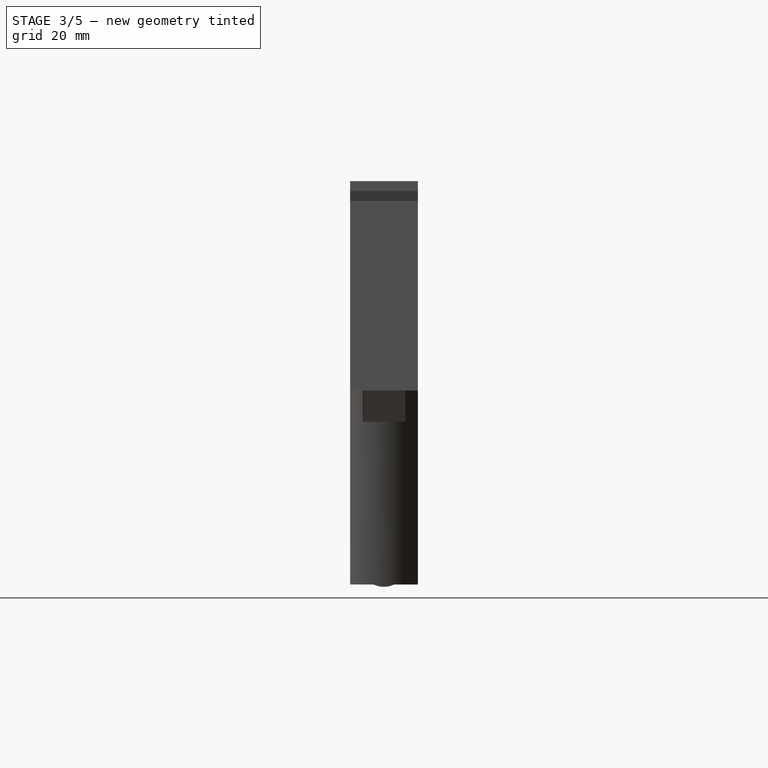
[diagram: stage 3 of 5 — right view after this stage's code; geometry added in this stage tinted green]
FEATURE [Sketcher::SketchObject] Sketch008  label="buchi e pulizie varie"
  ArcFitTolerance = 1e-06
  AttachmentSupport = -> [XZ_Plane]
  ExternalGeometry = -> [Sketch]
  FullyConstrained = true
  MakeInternals = false
  MapMode = 5
  Placement = pos=(0,0,0) rot=(1,0,0;1.5708rad)
  sketch-geometry (20):
    g0: LineSegment StartX=-96.278 StartY=20.155 StartZ=0 EndX=-92.278 EndY=20.155 EndZ=0
    g1: LineSegment StartX=-92.278 StartY=20.155 StartZ=0 EndX=-92.278 EndY=16.155 EndZ=0
    g2: LineSegment StartX=-92.278 StartY=16.155 StartZ=0 EndX=-96.278 EndY=16.155 EndZ=0
    g3: LineSegment StartX=-96.278 StartY=16.155 StartZ=0 EndX=-96.278 EndY=20.155 EndZ=0
    g4: LineSegment StartX=-221.232 StartY=-82.4316 StartZ=0 EndX=-171.232 EndY=-82.4316 EndZ=0
    g5: LineSegment StartX=-171.232 StartY=-82.4316 StartZ=0 EndX=-171.232 EndY=-86.4316 EndZ=0
    g6: LineSegment StartX=-171.232 StartY=-86.4316 StartZ=0 EndX=-221.232 EndY=-86.4316 EndZ=0
    g7: LineSegment StartX=-221.232 StartY=-86.4316 StartZ=0 EndX=-221.232 EndY=-82.4316 EndZ=0
    g8: LineSegment StartX=-208.001 StartY=22 StartZ=0 EndX=-213.901 EndY=22 EndZ=0
    g9: LineSegment StartX=-213.901 StartY=22 StartZ=0 EndX=-213.901 EndY=26 EndZ=0
    g10: LineSegment StartX=-213.901 StartY=26 StartZ=0 EndX=-208.001 EndY=26 EndZ=0
    g11: LineSegment StartX=-208.001 StartY=26 StartZ=0 EndX=-208.001 EndY=22 EndZ=0
    g12: LineSegment StartX=-17.4 StartY=42.8 StartZ=0 EndX=-12.4 EndY=42.8 EndZ=0
    g13: LineSegment StartX=-12.4 StartY=42.8 StartZ=0 EndX=-12.4 EndY=41.2 EndZ=0
    g14: LineSegment StartX=-12.4 StartY=41.2 StartZ=0 EndX=-17.4 EndY=41.2 EndZ=0
    g15: LineSegment StartX=-17.4 StartY=41.2 StartZ=0 EndX=-17.4 EndY=42.8 EndZ=0
    g16: LineSegment StartX=-25.9 StartY=42.8 StartZ=0 EndX=-20.9 EndY=42.8 EndZ=0
    g17: LineSegment StartX=-20.9 StartY=42.8 StartZ=0 EndX=-20.9 EndY=41.2 EndZ=0
    g18: LineSegment StartX=-20.9 StartY=41.2 StartZ=0 EndX=-25.9 EndY=41.2 EndZ=0
    g19: LineSegment StartX=-25.9 StartY=41.2 StartZ=0 EndX=-25.9 EndY=42.8 EndZ=0
  constraints (59):
    c: Horizontal(g0)
    c: Coincident(g1,g0)
    c: Vertical(g1)
    c: Coincident(g2,g1)
    c: Horizontal(g2)
    c: Coincident(g3,g2)
    c: Coincident(g3,g0)
    c: Vertical(g3)
    c: DistanceX(g0,g-4) = 4.368
    c: DistanceY(g0,g-4) = 1.845
    c: DistanceY(g1,g1) = 4
    c: DistanceX(g2,g2) = 4
    c: Horizontal(g4)
    c: Coincident(g5,g4)
    c: Vertical(g5)
    c: Coincident(g6,g5)
    c: Horizontal(g6)
    c: Coincident(g7,g6)
    c: Coincident(g7,g4)
    c: Vertical(g7)
    c: DistanceY(g7,g7) = 4
    c: DistanceX(g4,g-5) = 4
    c: DistanceX(g-5,g4) = 4
    c: DistanceY(g4,g-5) = 0
    c: Coincident(g9,g8)
    c: Coincident(g10,g9)
    c: Coincident(g11,g10)
    c: Coincident(g11,g8)
    c: Parallel(g8,g10)
    c: Parallel(g10,g-6)
    c: Perpendicular(g11,g8)
    c: Distance(g11) = 4
    c: Coincident(g8,g-7)
    c: DistanceX(g8,g-8) = 4
    c: Perpendicular(g9,g8)
    c: Horizontal(g12)
    c: Coincident(g13,g12)
    c: Vertical(g13)
    c: Coincident(g14,g13)
    c: Horizontal(g14)
    c: Coincident(g15,g14)
    c: Coincident(g15,g12)
    c: Vertical(g15)
    c: Horizontal(g16)
    c: Coincident(g17,g16)
    c: Vertical(g17)
    c: Coincident(g18,g17)
    c: Horizontal(g18)
    c: Coincident(g19,g18)
    c: Coincident(g19,g16)
    c: Vertical(g19)
    c: DistanceY(g13,g12) = 1.6
    c: DistanceX(g12,g12) = 5
    c: DistanceY(g17,g16) = 1.6
    c: DistanceX(g16,g16) = 5
    c: DistanceX(g17,g14) = 3.5
    c: DistanceX(g13,g-9) = 10
    c: DistanceY(g-9,g13) = 0
    c: DistanceY(g-9,g17) = 0
FEATURE [Part::Extrusion] Extrude004  label="Extrude Buchi e pulizie varie"
  Base = -> Sketch008
  Dir = (0,-1,2e-16)
  DirMode = 2
  FaceMakerClass = Part::FaceMakerBullseye
  FaceMakerMode = 3
  LengthFwd = 25.2
  LengthRev = 0
  Solid = true
  Symmetric = true
FEATURE [Sketcher::SketchObject] Sketch009  label="rinforzi"
  ArcFitTolerance = 1e-06
  AttachmentSupport = -> [XZ_Plane]
  ExternalGeometry = -> [Sketch]
  FullyConstrained = true
  MakeInternals = false
  MapMode = 5
  Placement = pos=(0,0,0) rot=(1,0,0;1.5708rad)
  sketch-geometry (9):
    g0: LineSegment StartX=-87.91 StartY=22 StartZ=0 EndX=-87.91 EndY=36.4 EndZ=0
    g1: LineSegment StartX=-87.91 StartY=36.4 StartZ=0 EndX=-97.91 EndY=36.4 EndZ=0
    g2: LineSegment StartX=-97.91 StartY=36.4 StartZ=0 EndX=-97.91 EndY=22 EndZ=0
    g3: LineSegment StartX=-97.91 StartY=22 StartZ=0 EndX=-87.91 EndY=22 EndZ=0
    g4: LineSegment StartX=-149.713 StartY=9.06563 StartZ=0 EndX=-154.586 EndY=-5.93437 EndZ=0
    g5: LineSegment StartX=-154.586 StartY=-5.93437 StartZ=0 EndX=-190.363 EndY=-5.93437 EndZ=0
    g6: LineSegment StartX=-190.363 StartY=-5.93437 StartZ=0 EndX=-190.363 EndY=9.06563 EndZ=0
    g7: LineSegment StartX=-190.363 StartY=9.06563 StartZ=0 EndX=-149.713 EndY=9.06563 EndZ=0
    g8: LineSegment [constr] StartX=-145.51 StartY=22 StartZ=0 EndX=-149.713 EndY=9.06563 EndZ=0
  constraints (25):
    c: Vertical(g0)
    c: Coincident(g1,g0)
    c: Horizontal(g1)
    c: Coincident(g2,g1)
    c: Vertical(g2)
    c: Coincident(g3,g2)
    c: Coincident(g3,g0)
    c: Horizontal(g3)
    c: Coincident(g0,g-4)
    c: DistanceX(g3,g3) = 10
    c: DistanceY(g0,g-3) = 0
    c: Coincident(g5,g4)
    c: Horizontal(g5)
    c: Coincident(g6,g5)
    c: Vertical(g6)
    c: Coincident(g7,g6)
    c: Coincident(g7,g4)
    c: Horizontal(g7)
    c: Distance(g8) = 13.6
    c: Parallel(g-6,g8)
    c: Coincident(g-6,g8)
    c: Parallel(g4,g-6)
    c: DistanceY(g4,g4) = 15
    c: Coincident(g4,g8)
    c: DistanceX(g-5,g5) = 0
FEATURE [Part::Extrusion] Extrude001  label="Extrude scavo grilletto"
  Base = -> Sketch002
  Dir = (0,-1,2e-16)
  DirMode = 2
  FaceMakerClass = Part::FaceMakerBullseye
  FaceMakerMode = 3
  LengthFwd = 16
  LengthRev = 0
  Solid = true
  Symmetric = true
FEATURE [Part::Cut] Cut
  Base = -> Fusion
  Refine = true
  Tool = -> Extrude001
FEATURE [Part::Cut] Cut001
  Base = -> Cut
  Refine = true
  Tool = -> Extrude004
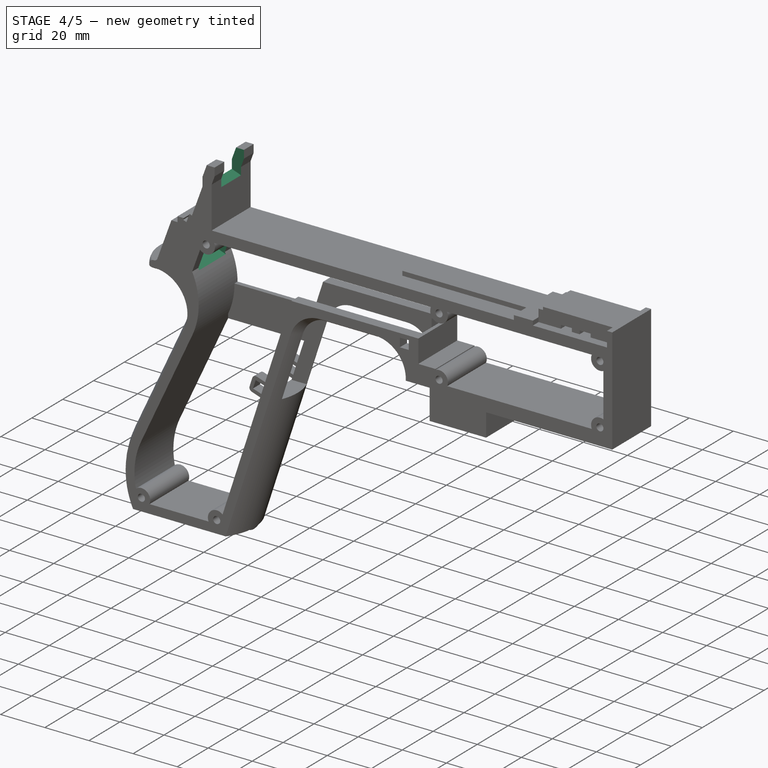
[diagram: stage 4 of 5 — iso view after this stage's code; geometry added in this stage tinted green]
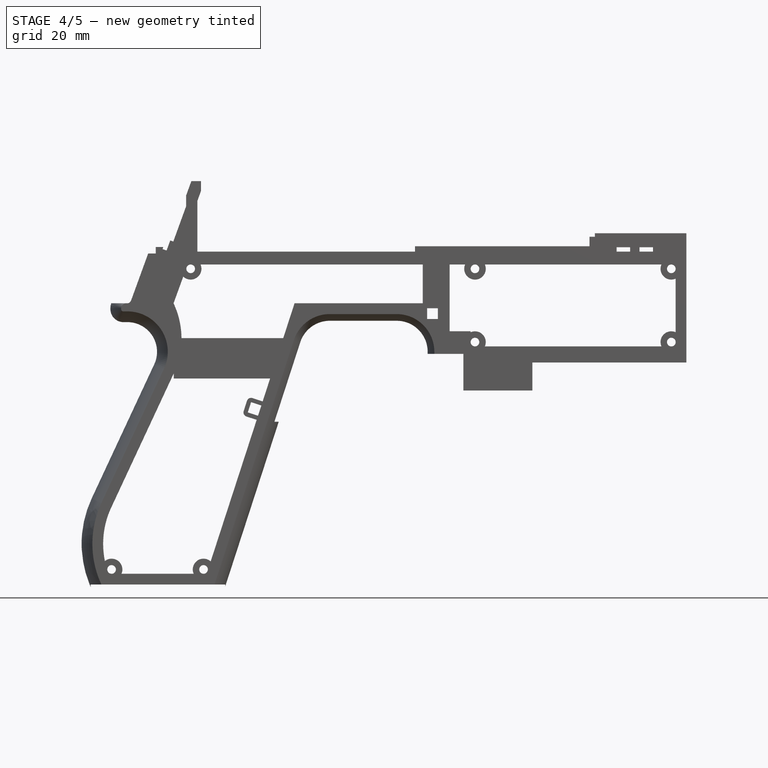
[diagram: stage 4 of 5 — front view after this stage's code; geometry added in this stage tinted green]
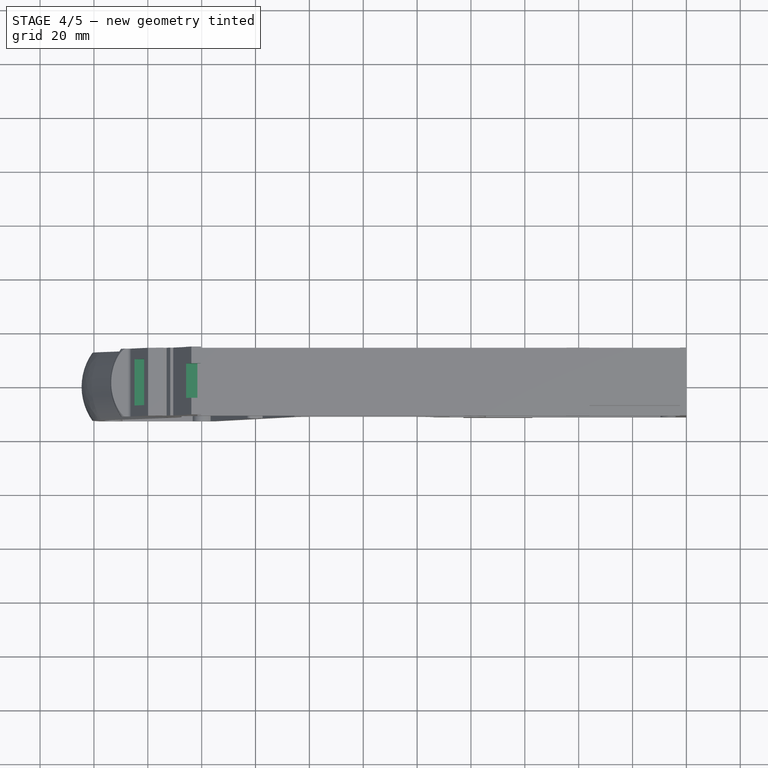
[diagram: stage 4 of 5 — top view after this stage's code; geometry added in this stage tinted green]
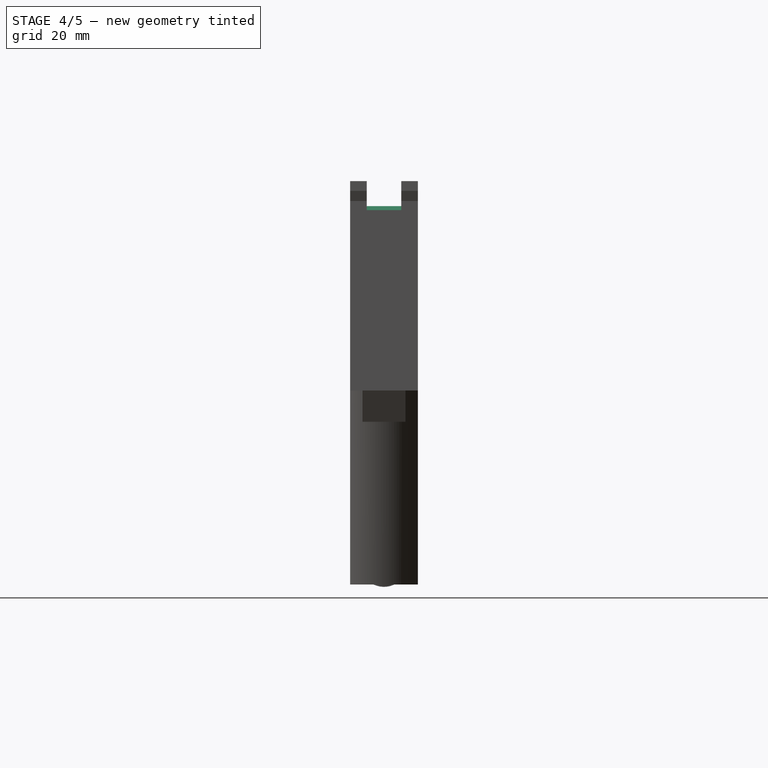
[diagram: stage 4 of 5 — right view after this stage's code; geometry added in this stage tinted green]
FEATURE [PartDesign::ShapeBinder] CopyCut
  TraceSupport = false
FEATURE [PartDesign::Plane] DatumPlane001
  AttachmentSupport = -> [CopyCut]
  Length = 283.944
  MapMode = 5
  Placement = pos=(0,12.6,0) rot=(0,0.707107,0.707107;3.14159rad)
  ResizeMode = 0
  Width = 188.15
FEATURE [Sketcher::SketchObject] Sketch010  label="buco neopixel"
  ArcFitTolerance = 1e-06
  AttachmentSupport = -> [XZ_Plane]
  ExternalGeometry = -> [Sketch]
  FullyConstrained = true
  MakeInternals = false
  MapMode = 5
  Placement = pos=(0,0,0) rot=(1,0,0;1.5708rad)
  sketch-geometry (5):
    g0: LineSegment [constr] StartX=-199.861 StartY=40.4914 StartZ=0 EndX=-201.368 EndY=36.3521 EndZ=0
    g1: LineSegment StartX=-201.368 StartY=36.3521 StartZ=0 EndX=-204.932 EndY=26.5605 EndZ=0
    g2: LineSegment StartX=-201.368 StartY=36.3521 StartZ=0 EndX=-185.2 EndY=30.4675 EndZ=0
    g3: LineSegment StartX=-185.2 StartY=30.4675 StartZ=0 EndX=-188.764 EndY=20.6759 EndZ=0
    g4: LineSegment StartX=-188.764 StartY=20.6759 StartZ=0 EndX=-204.932 EndY=26.5605 EndZ=0
  constraints (14):
    c: Parallel(g0,g-3)
    c: Distance(g0) = 4.405
    c: Coincident(g0,g-3)
    c: Coincident(g2,g1)
    c: Coincident(g3,g2)
    c: Coincident(g4,g3)
    c: Coincident(g4,g1)
    c: Parallel(g1,g-3)
    c: Distance(g1) = 10.42
    c: Coincident(g1,g0)
    c: Parallel(g2,g4)
    c: Perpendicular(g1,g2)
    c: DistanceX(g-4,g2) = 0
    c: Parallel(g3,g1)
FEATURE [Part::Extrusion] Extrude006  label="Extrude buco neopixel"
  Base = -> Sketch010
  Dir = (0,-1,2e-16)
  DirMode = 2
  FaceMakerClass = Part::FaceMakerBullseye
  FaceMakerMode = 3
  LengthFwd = 17.2
  LengthRev = 0
  Solid = true
  Symmetric = true
FEATURE [Sketcher::SketchObject] Sketch012  label="buco oled"
  ArcFitTolerance = 1e-06
  AttachmentSupport = -> [XZ_Plane]
  ExternalGeometry = -> [Sketch]
  FullyConstrained = true
  MakeInternals = false
  MapMode = 5
  Placement = pos=(0,0,0) rot=(1,0,0;1.5708rad)
  sketch-geometry (4):
    g0: LineSegment StartX=-185.747 StartY=58.0965 StartZ=0 EndX=-180.232 EndY=56.0891 EndZ=0
    g1: LineSegment StartX=-185.747 StartY=58.0965 StartZ=0 EndX=-185.747 EndY=67.3588 EndZ=0
    g2: LineSegment StartX=-185.747 StartY=67.3588 StartZ=0 EndX=-180.232 EndY=67.3588 EndZ=0
    g3: LineSegment StartX=-180.232 StartY=67.3588 StartZ=0 EndX=-180.232 EndY=56.0891 EndZ=0
  constraints (10):
    c: Coincident(g1,g0)
    c: Coincident(g2,g1)
    c: Coincident(g3,g2)
    c: Coincident(g3,g0)
    c: Parallel(g1,g-5)
    c: Perpendicular(g-3,g0)
    c: Parallel(g2,g-6)
    c: Parallel(g3,g-4)
    c: Coincident(g0,g-5)
    c: Coincident(g2,g-6)
FEATURE [Part::Extrusion] Extrude008  label="Extrude buco oled"
  Base = -> Sketch012
  Dir = (0,-1,2e-16)
  DirMode = 2
  FaceMakerClass = Part::FaceMakerBullseye
  FaceMakerMode = 3
  LengthFwd = 12.8
  LengthRev = 0
  Solid = true
  Symmetric = true
FEATURE [Sketcher::SketchObject] Sketch013  label="buco pompa"
  ArcFitTolerance = 1e-06
  AttachmentSupport = -> [XZ_Plane]
  ExternalGeometry = -> [Sketch]
  FullyConstrained = true
  MakeInternals = false
  MapMode = 5
  Placement = pos=(0,0,0) rot=(1,0,0;1.5708rad)
  sketch-geometry (8):
    g0: LineSegment StartX=-82.8 StartY=-10.4 StartZ=0 EndX=-82.8 EndY=-9.6 EndZ=0
    g1: LineSegment StartX=-82.8 StartY=-9.6 StartZ=0 EndX=-67.9 EndY=-9.6 EndZ=0
    g2: LineSegment StartX=-67.9 StartY=-9.6 StartZ=0 EndX=-67.9 EndY=6 EndZ=0
    g3: LineSegment StartX=-67.9 StartY=6 StartZ=0 EndX=-65.9 EndY=6 EndZ=0
    g4: LineSegment StartX=-65.9 StartY=6 StartZ=0 EndX=-65.9 EndY=-1.7 EndZ=0
    g5: LineSegment StartX=-65.9 StartY=-1.7 StartZ=0 EndX=-57.2 EndY=-1.7 EndZ=0
    g6: LineSegment StartX=-57.2 StartY=-1.7 StartZ=0 EndX=-57.2 EndY=-10.4 EndZ=0
    g7: LineSegment StartX=-57.2 StartY=-10.4 StartZ=0 EndX=-82.8 EndY=-10.4 EndZ=0
  constraints (22):
    c: Vertical(g0)
    c: Coincident(g1,g0)
    c: Horizontal(g1)
    c: Coincident(g2,g1)
    c: Vertical(g2)
    c: Coincident(g3,g2)
    c: Horizontal(g3)
    c: Coincident(g4,g3)
    c: Vertical(g4)
    c: Coincident(g5,g4)
    c: Horizontal(g5)
    c: Coincident(g6,g5)
    c: Vertical(g6)
    c: Coincident(g7,g6)
    c: Coincident(g7,g0)
    c: DistanceY(g0,g0) = 0.8
    c: DistanceY(g6,g6) = 8.7
    c: DistanceX(g1,g1) = 14.9
    c: DistanceX(g3,g3) = 2
    c: Coincident(g0,g-4)
    c: DistanceY(g2,g-6) = 0
    c: Coincident(g6,g-5)
FEATURE [Part::Extrusion] Extrude009  label="Extrude buco pompa"
  Base = -> Sketch013
  Dir = (0,-1,2e-16)
  DirMode = 2
  FaceMakerClass = Part::FaceMakerBullseye
  FaceMakerMode = 3
  LengthFwd = 13.2
  LengthRev = 0
  Solid = true
  Symmetric = true
FEATURE [Part::Cut] Cut002
  Base = -> Cut001
  Refine = true
  Tool = -> Extrude006
FEATURE [Part::Cut] Cut003
  Base = -> Cut002
  Refine = true
  Tool = -> Extrude008
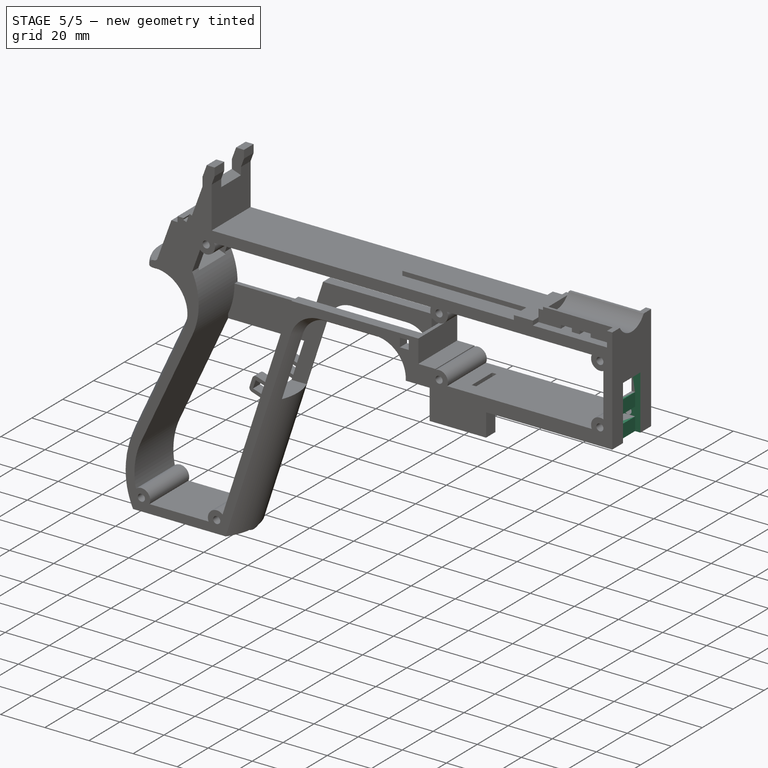
[diagram: stage 5 of 5 — iso view after this stage's code; geometry added in this stage tinted green]
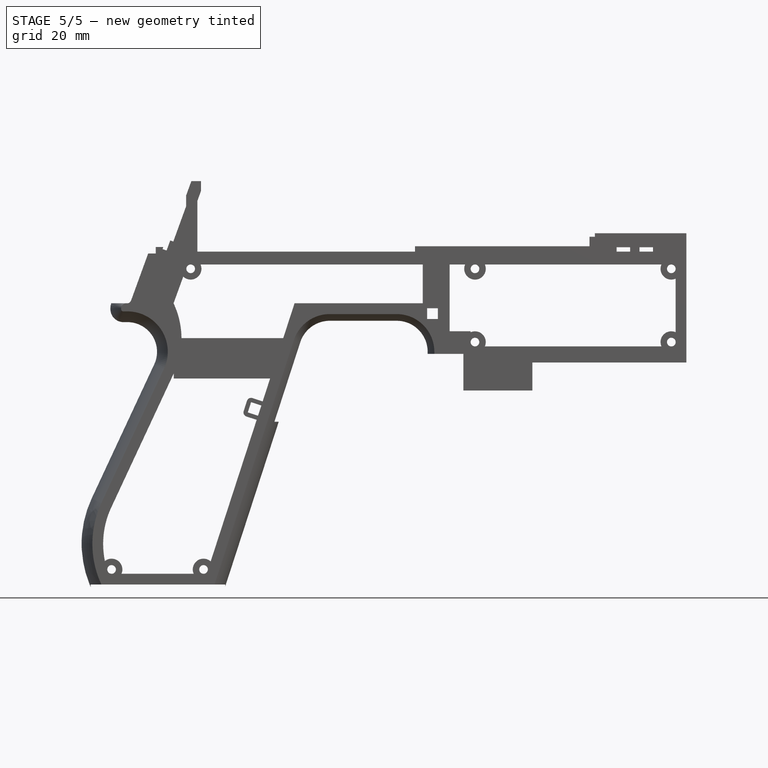
[diagram: stage 5 of 5 — front view after this stage's code; geometry added in this stage tinted green]
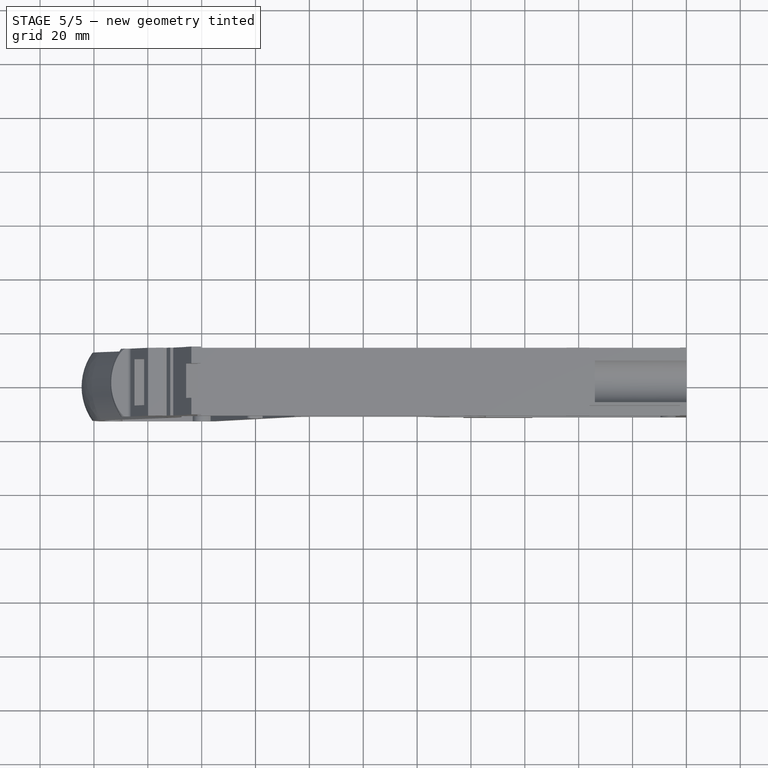
[diagram: stage 5 of 5 — top view after this stage's code; geometry added in this stage tinted green]
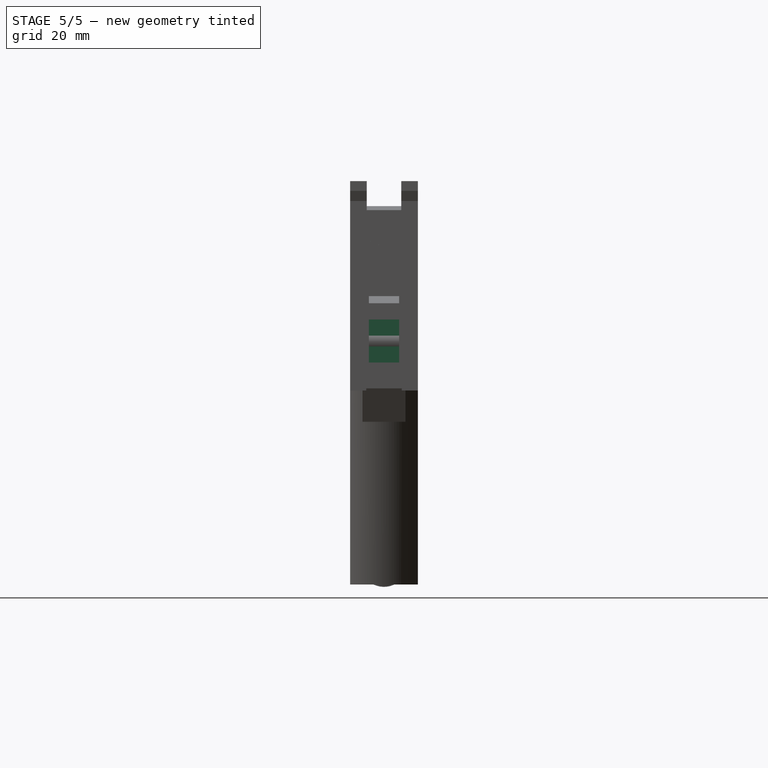
[diagram: stage 5 of 5 — right view after this stage's code; geometry added in this stage tinted green]
FEATURE [Sketcher::SketchObject] Sketch014  label="buco frontale"
  ArcFitTolerance = 1e-06
  AttachmentSupport = -> [XZ_Plane]
  ExternalGeometry = -> [Sketch]
  FullyConstrained = true
  MakeInternals = false
  MapMode = 5
  Placement = pos=(0,0,0) rot=(1,0,0;1.5708rad)
  sketch-geometry (10):
    g0: LineSegment StartX=0 StartY=0 StartZ=0 EndX=0 EndY=24.671 EndZ=0
    g1: LineSegment StartX=0 StartY=24.671 StartZ=0 EndX=-4 EndY=24.671 EndZ=0
    g2: LineSegment StartX=-4 StartY=24.671 StartZ=0 EndX=-4 EndY=16 EndZ=0
    g3: LineSegment StartX=-4 StartY=16 StartZ=0 EndX=-2.4 EndY=16 EndZ=0
    g4: LineSegment StartX=-2.4 StartY=16 StartZ=0 EndX=-2.4 EndY=10 EndZ=0
    g5: LineSegment StartX=-2.4 StartY=10 StartZ=0 EndX=-12 EndY=10 EndZ=0
    g6: LineSegment StartX=-12 StartY=10 StartZ=0 EndX=-12 EndY=6 EndZ=0
    g7: LineSegment StartX=-12 StartY=6 StartZ=0 EndX=-2.4 EndY=6 EndZ=0
    g8: LineSegment StartX=-2.4 StartY=6 StartZ=0 EndX=-2.4 EndY=0 EndZ=0
    g9: LineSegment StartX=-2.4 StartY=0 StartZ=0 EndX=0 EndY=0 EndZ=0
  constraints (29):
    c: Vertical(g0)
    c: Coincident(g1,g0)
    c: Horizontal(g1)
    c: Coincident(g2,g1)
    c: Vertical(g2)
    c: Coincident(g3,g2)
    c: Horizontal(g3)
    c: Coincident(g4,g3)
    c: Vertical(g4)
    c: Coincident(g5,g4)
    c: Horizontal(g5)
    c: Coincident(g6,g5)
    c: Vertical(g6)
    c: Coincident(g7,g6)
    c: Coincident(g8,g7)
    c: Vertical(g8)
    c: Coincident(g9,g8)
    c: Coincident(g9,g0)
    c: Horizontal(g9)
    c: DistanceY(g0,g0) = 24.671
    c: Horizontal(g7)
    c: DistanceY(g6,g6) = 4
    c: DistanceY(g4,g4) = 6
    c: DistanceX(g9,g9) = 2.4
    c: Coincident(g0,g-1)
    c: DistanceY(g-3,g7) = 0
    c: DistanceX(g8,g4) = 0
    c: DistanceX(g-3,g1) = 0
    c: DistanceX(g6,g-3) = 8
FEATURE [Part::Extrusion] Extrude010  label="Extrude buco frontale"
  Base = -> Sketch014
  Dir = (0,-1,2e-16)
  DirMode = 2
  FaceMakerClass = Part::FaceMakerBullseye
  FaceMakerMode = 3
  LengthFwd = 11.2
  LengthRev = 0
  Solid = true
  Symmetric = true
FEATURE [Part::Cut] Cut004
  Base = -> Cut003
  Refine = true
  Tool = -> Extrude009
FEATURE [Part::Cut] Cut005
  Base = -> Cut004
  Refine = true
  Tool = -> Extrude010
FEATURE [Part::Cut] Cut006
  Base = -> Cut005
  Refine = true
  Tool = -> Extrude014
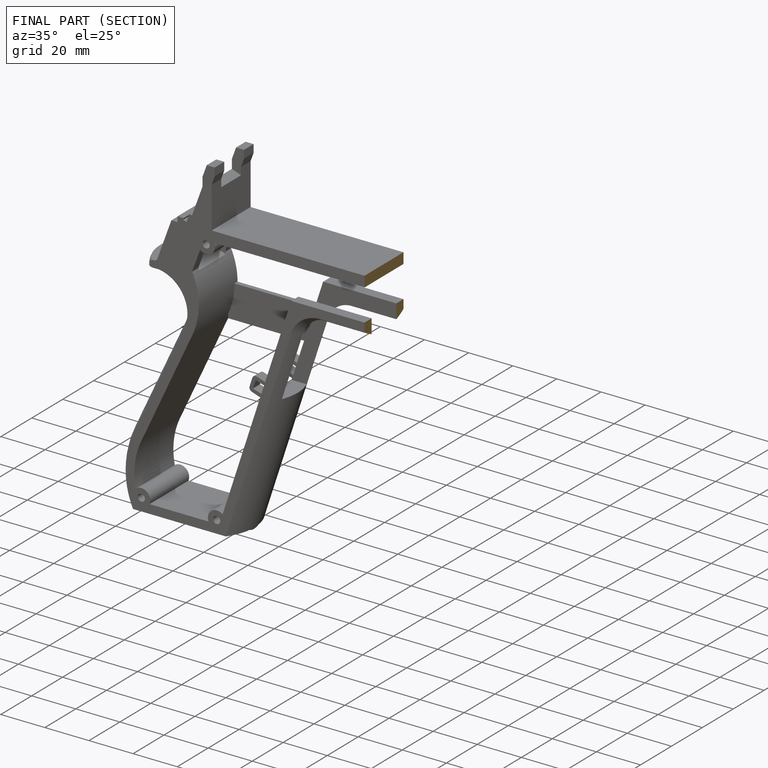
[diagram: finished part — half-section view (interior)]
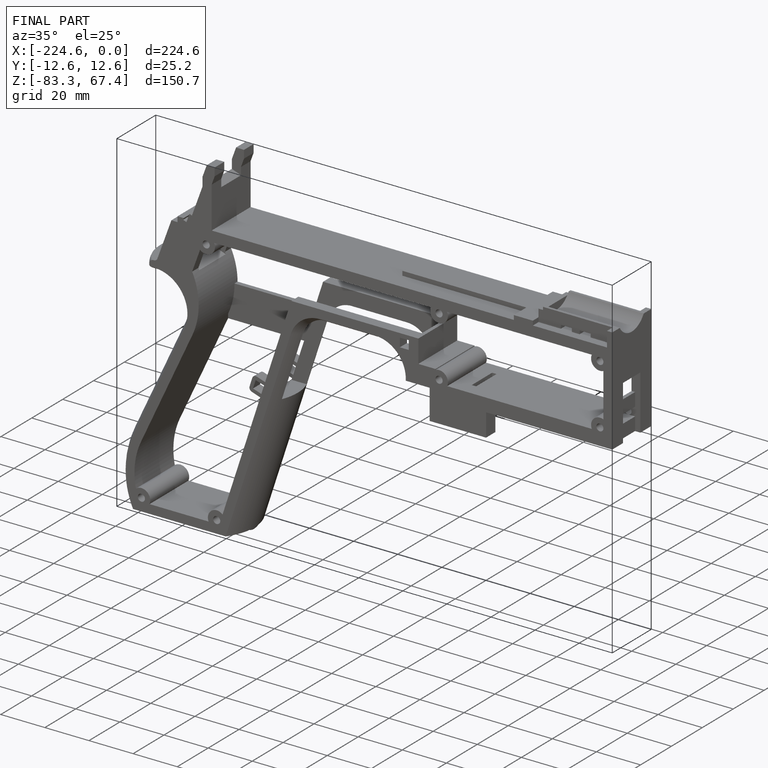
[diagram: finished part — iso view with bounding-box wireframe]
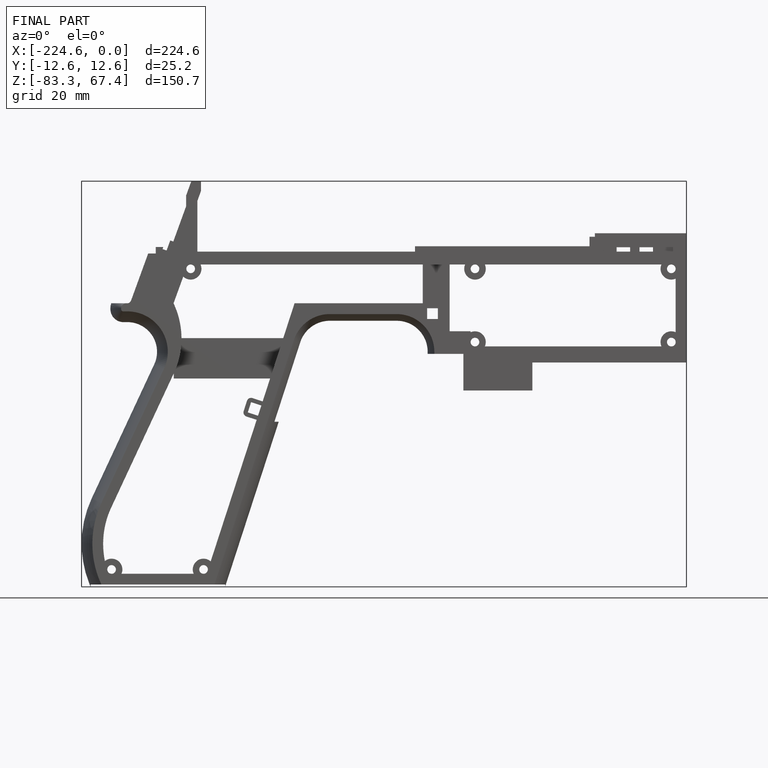
[diagram: finished part — front view with bounding-box wireframe]
